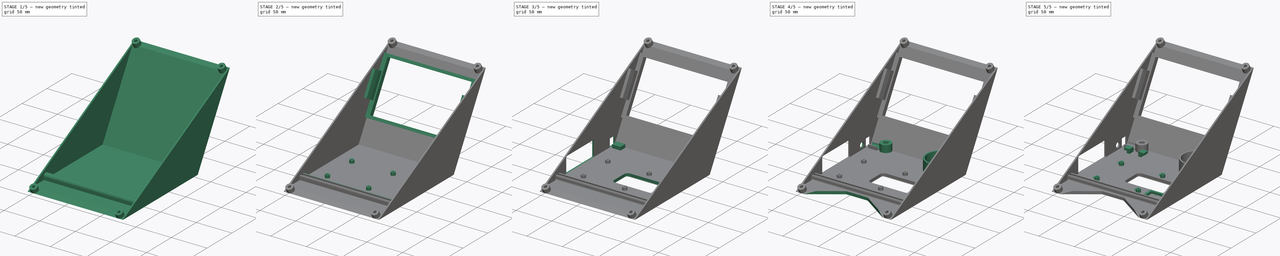
[diagram: build sequence overview — one tinted view per stage of 5, left to right]
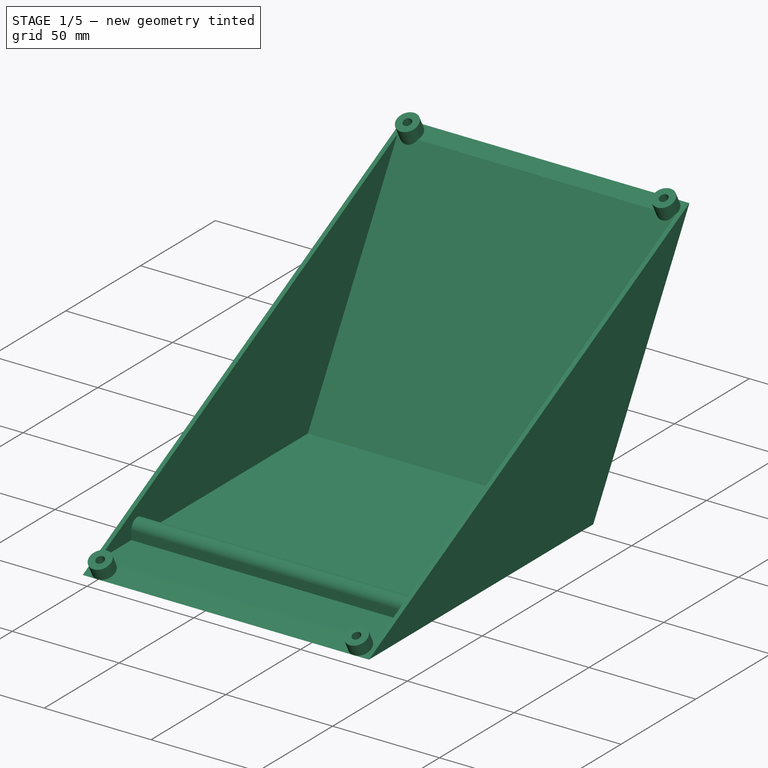
[diagram: stage 1 of 5 — iso view after this stage's code; geometry added in this stage tinted green]
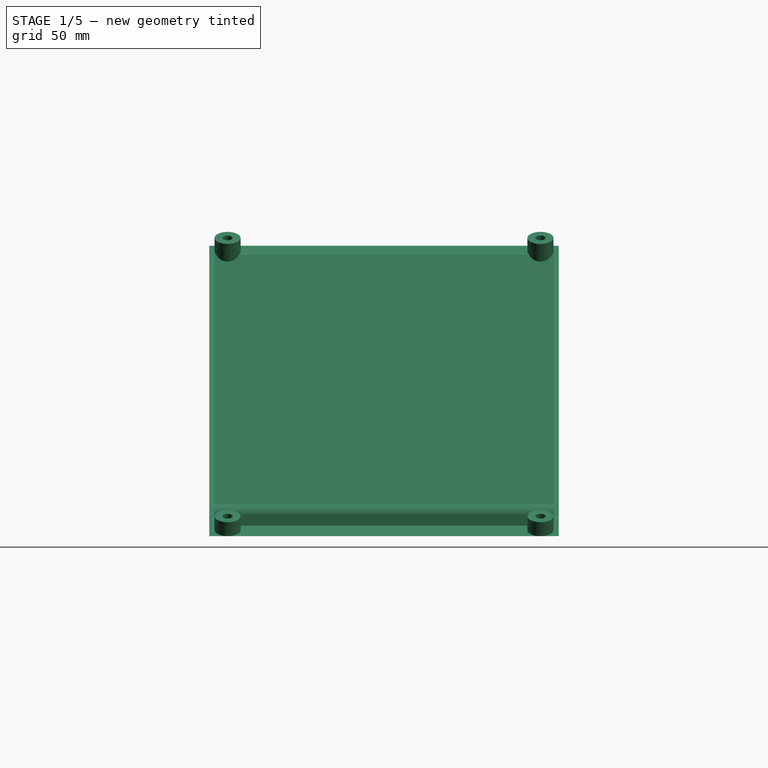
[diagram: stage 1 of 5 — front view after this stage's code; geometry added in this stage tinted green]
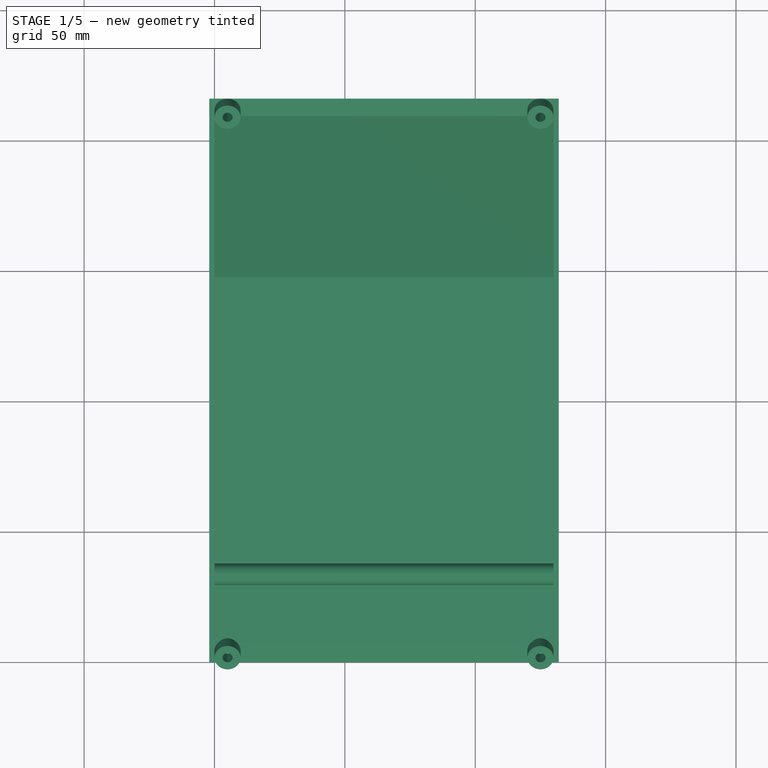
[diagram: stage 1 of 5 — top view after this stage's code; geometry added in this stage tinted green]
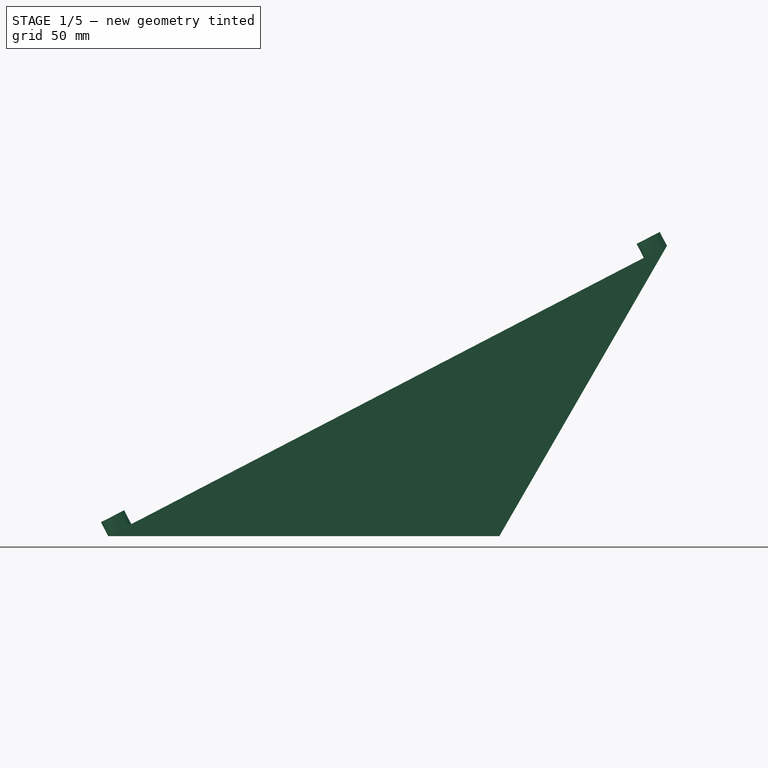
[diagram: stage 1 of 5 — right view after this stage's code; geometry added in this stage tinted green]
FCSTD DOCUMENT  (FreeCAD 0.17R8469 (Git))
Label: DAPrototypeHolder
License: All rights reserved
LicenseURL: http://en.wikipedia.org/wiki/All_rights_reserved
objects: Sketcher::SketchObject×32, PartDesign::Pad×17, PartDesign::Pocket×15, PartDesign::Fillet×5
note: 101 computed .brp shape members not serialized (recipe doc carries the construction recipe); baked Part::Feature solids carry a one-line shape summary decoded from their .brp

FEATURE [Sketcher::SketchObject] Sketch
  MapMode = 5
  Placement = pos=(0,0,0) rot=(0.57735,0.57735,0.57735;2.0944rad)
  sketch-geometry (9):
    g0: LineSegment StartX=0 StartY=0 StartZ=0 EndX=64.2889 EndY=111.352 EndZ=0
    g1: LineSegment StartX=57.6906 StartY=107.923 StartZ=0 EndX=-2.3094 EndY=4 EndZ=0
    g2: LineSegment StartX=0 StartY=0 StartZ=0 EndX=-150.007 EndY=0 EndZ=0
    g3: LineSegment StartX=-2.3094 StartY=4 StartZ=0 EndX=-142.309 EndY=4 EndZ=0
    g4: LineSegment StartX=-150.007 StartY=0 StartZ=0 EndX=-142.309 EndY=4 EndZ=0
    g5: LineSegment StartX=57.6906 StartY=107.923 StartZ=0 EndX=64.2889 EndY=111.352 EndZ=0
    g6: LineSegment [constr] StartX=-2.3094 StartY=4 StartZ=0 EndX=-2.3094 EndY=0 EndZ=0
    g7: LineSegment [constr] StartX=-2.3094 StartY=4 StartZ=0 EndX=1.1547 EndY=2 EndZ=0
    g8: LineSegment [constr] StartX=-150.007 StartY=0 StartZ=0 EndX=71.8317 EndY=115.271 EndZ=0
  constraints (27):
    c: Coincident(g0,g-1)
    c: Coincident(g2,g-1)
    c: Horizontal(g2)
    c: Horizontal(g3)
    c: Coincident(g4,g2)
    c: Coincident(g5,g1)
    c: Coincident(g5,g0)
    c: Parallel(g0,g1)
    c: Coincident(g3,g4)
    c: Coincident(g3,g1)
    c: Angle(g0,g2) = 2.0944
    c: PointOnObject(g6,g2)
    c: Vertical(g6)
    c: Distance(g6) = 4
    c: PointOnObject(g7,g0)
    c: Perpendicular(g0,g7)
    c: Distance(g3) = 140
    c: Distance(g1) = 120
    c: Coincident(g7,g1)
    c: Coincident(g6,g1)
    c: Equal(g7,g6)
    c: PointOnObject(g1,g8)
    c: PointOnObject(g3,g8)
    c: PointOnObject(g2,g8)
    c: PointOnObject(g0,g8)
    c: PointOnObject(g8,g-1)
    c: Distance(g8) = 250
FEATURE [PartDesign::Pad] Pad
  Length = 130
  Length2 = 100
  Placement = pos=(0,0,0) rot=(0.57735,0.57735,0.57735;2.0944rad)
  Profile = -> Sketch
  Type = 0
FEATURE [Sketcher::SketchObject] Sketch001
  ExternalGeometry = -> [Pad]
  MapMode = 5
  Placement = pos=(0,-31.8913,61.3749) rot=(0.230909,0.230909,-0.945179;1.62715rad)
  Support = -> [Pad]
  sketch-geometry (4):
    g0: Circle CenterX=-103.39 CenterY=125 CenterZ=0 NormalX=0 NormalY=0 NormalZ=1 Radius=5
    g1: Circle CenterX=-103.39 CenterY=5 CenterZ=0 NormalX=0 NormalY=0 NormalZ=1 Radius=5
    g2: Circle CenterX=128.11 CenterY=5 CenterZ=0 NormalX=0 NormalY=0 NormalZ=1 Radius=5
    g3: Circle CenterX=128.11 CenterY=125 CenterZ=0 NormalX=0 NormalY=0 NormalZ=1 Radius=5
  constraints (12):
    c: Radius(g0) = 5
    c: Equal(g0,g1)
    c: Equal(g0,g2)
    c: Equal(g0,g3)
    c: Tangent(g0,g-4)
    c: Tangent(g0,g-3)
    c: Tangent(g1,g-5)
    c: Tangent(g1,g-4)
    c: Tangent(g3,g-7)
    c: Tangent(g3,g-8)
    c: Tangent(g2,g-6)
    c: Tangent(g2,g-7)
FEATURE [PartDesign::Pad] Pad001
  Length = 6
  Length2 = 6
  Placement = pos=(0,0,0) rot=(0.57735,0.57735,0.57735;2.0944rad)
  Profile = -> Sketch001
  Type = 4
FEATURE [Sketcher::SketchObject] Sketch002
  ExternalGeometry = -> [Pad001]
  MapMode = 5
  Placement = pos=(130,0,0) rot=(0.57735,0.57735,0.57735;2.0944rad)
  Support = -> [Pad001]
  sketch-geometry (4):
    g0: LineSegment StartX=0 StartY=0 StartZ=0 EndX=83.7158 EndY=145 EndZ=0
    g1: LineSegment StartX=83.7158 StartY=145 StartZ=0 EndX=83.7158 EndY=-145 EndZ=0
    g2: LineSegment StartX=83.7158 StartY=-145 StartZ=0 EndX=-167.432 EndY=0 EndZ=0
    g3: LineSegment StartX=0 StartY=0 StartZ=0 EndX=-167.432 EndY=0 EndZ=0
  constraints (11):
    c: Coincident(g0,g-1)
    c: Coincident(g1,g0)
    c: Vertical(g1)
    c: Coincident(g2,g1)
    c: Coincident(g3,g-1)
    c: Coincident(g2,g3)
    c: PointOnObject(g2,g-4)
    c: PointOnObject(g0,g-3)
    c: Equal(g1,g2)
    c: Equal(g3,g0)
    c: Distance(g2) = 290
FEATURE [PartDesign::Pocket] Pocket
  Length = 5
  Placement = pos=(0,0,0) rot=(0.57735,0.57735,0.57735;2.0944rad)
  Profile = -> Sketch002
  Type = 1
FEATURE [Sketcher::SketchObject] Sketch003
  ExternalGeometry = -> [Pocket]
  MapMode = 5
  Placement = pos=(0,-34.6578,66.699) rot=(0.230909,0.230909,-0.945179;1.62715rad)
  Support = -> [Pocket]
  sketch-geometry (4):
    g0: Circle CenterX=128.11 CenterY=125 CenterZ=0 NormalX=0 NormalY=0 NormalZ=1 Radius=1.95
    g1: Circle CenterX=128.11 CenterY=5 CenterZ=0 NormalX=0 NormalY=0 NormalZ=1 Radius=1.95
    g2: Circle CenterX=-103.39 CenterY=125 CenterZ=0 NormalX=0 NormalY=0 NormalZ=1 Radius=1.95
    g3: Circle CenterX=-103.39 CenterY=5 CenterZ=0 NormalX=0 NormalY=0 NormalZ=1 Radius=1.95
  constraints (8):
    c: Radius(g0) = 1.95
    c: Equal(g0,g1)
    c: Equal(g0,g2)
    c: Equal(g0,g3)
    c: Coincident(g3,g-4)
    c: Coincident(g2,g-3)
    c: Coincident(g1,g-5)
    c: Coincident(g0,g-6)
FEATURE [PartDesign::Pocket] Pocket001
  Length = 5
  Placement = pos=(0,0,0) rot=(0.57735,0.57735,0.57735;2.0944rad)
  Profile = -> Sketch003
  Type = 1
FEATURE [Sketcher::SketchObject] Sketch004
  ExternalGeometry = -> [Pocket001]
  MapMode = 5
  Placement = pos=(0,0,0) rot=(0.57735,0.57735,-0.57735;4.18879rad)
  Support = -> [Pocket001]
  sketch-geometry (3):
    g0: LineSegment StartX=-150.007 StartY=0 StartZ=0 EndX=64.2889 EndY=-111.352 EndZ=0
    g1: LineSegment StartX=64.2889 StartY=-111.352 StartZ=0 EndX=0 EndY=0 EndZ=0
    g2: LineSegment StartX=-150.007 StartY=0 StartZ=0 EndX=0 EndY=0 EndZ=0
  constraints (6):
    c: Coincident(g0,g-6)
    c: Coincident(g0,g-3)
    c: Coincident(g1,g0)
    c: Coincident(g1,g-1)
    c: Coincident(g2,g-6)
    c: Coincident(g2,g-1)
FEATURE [PartDesign::Pad] Pad002
  Length = 2
  Length2 = 100
  Placement = pos=(0,0,0) rot=(0.57735,0.57735,0.57735;2.0944rad)
  Profile = -> Sketch004
  Type = 0
FEATURE [Sketcher::SketchObject] Sketch005
  ExternalGeometry = -> [Pad002]
  MapMode = 5
  Placement = pos=(130,0,0) rot=(0.57735,0.57735,0.57735;2.0944rad)
  Support = -> [Pad002]
  sketch-geometry (3):
    g0: LineSegment StartX=64.2889 StartY=111.352 StartZ=0 EndX=0 EndY=0 EndZ=0
    g1: LineSegment StartX=0 StartY=0 StartZ=0 EndX=-150.007 EndY=0 EndZ=0
    g2: LineSegment StartX=-150.007 StartY=0 StartZ=0 EndX=64.2889 EndY=111.352 EndZ=0
  constraints (6):
    c: Coincident(g0,g-3)
    c: Coincident(g0,g-1)
    c: Coincident(g1,g-1)
    c: Coincident(g1,g-6)
    c: Coincident(g2,g1)
    c: Coincident(g2,g0)
FEATURE [PartDesign::Pad] Pad003
  Length = 2
  Length2 = 100
  Placement = pos=(0,0,0) rot=(0.57735,0.57735,0.57735;2.0944rad)
  Profile = -> Sketch005
  Type = 0
FEATURE [Sketcher::SketchObject] Sketch006
  ExternalGeometry = -> [Pad003]
  MapMode = 5
  Placement = pos=(0,0,0) rot=(0.57735,0.57735,0.57735;2.0944rad)
  Support = -> [Pad003]
  sketch-geometry (5):
    g0: Circle CenterX=-116.309 CenterY=8.1 CenterZ=0 NormalX=0 NormalY=0 NormalZ=1 Radius=2.6
    g1: ArcOfCircle CenterX=-116.309 CenterY=8.1 CenterZ=0 NormalX=0 NormalY=0 NormalZ=1 Radius=4.1 StartAngle=4.27539e-06 EndAngle=3.14159
    g2: LineSegment StartX=-120.409 StartY=4 StartZ=0 EndX=-120.409 EndY=8.1 EndZ=0
    g3: LineSegment StartX=-112.209 StartY=4 StartZ=0 EndX=-112.209 EndY=8.10002 EndZ=0
    g4: LineSegment StartX=-120.409 StartY=4 StartZ=0 EndX=-112.209 EndY=4 EndZ=0
  constraints (15):
    c: Coincident(g1,g0)
    c: Tangent(g1,g-3)
    c: Radius(g0) = 2.6
    c: Radius(g1) = 4.1
    c: DistanceX(g-3,g0) = 26
    c: PointOnObject(g2,g-3)
    c: Vertical(g2)
    c: PointOnObject(g3,g-3)
    c: Vertical(g3)
    c: Coincident(g1,g3)
    c: Coincident(g1,g2)
    c: Distance(g2) = 4.1
    c: Tangent(g3,g1)
    c: Coincident(g4,g2)
    c: Coincident(g4,g3)
FEATURE [PartDesign::Pad] Pad004
  Length = 10
  Length2 = 100
  Placement = pos=(0,0,0) rot=(0.57735,0.57735,0.57735;2.0944rad)
  Profile = -> Sketch006
  Type = 2
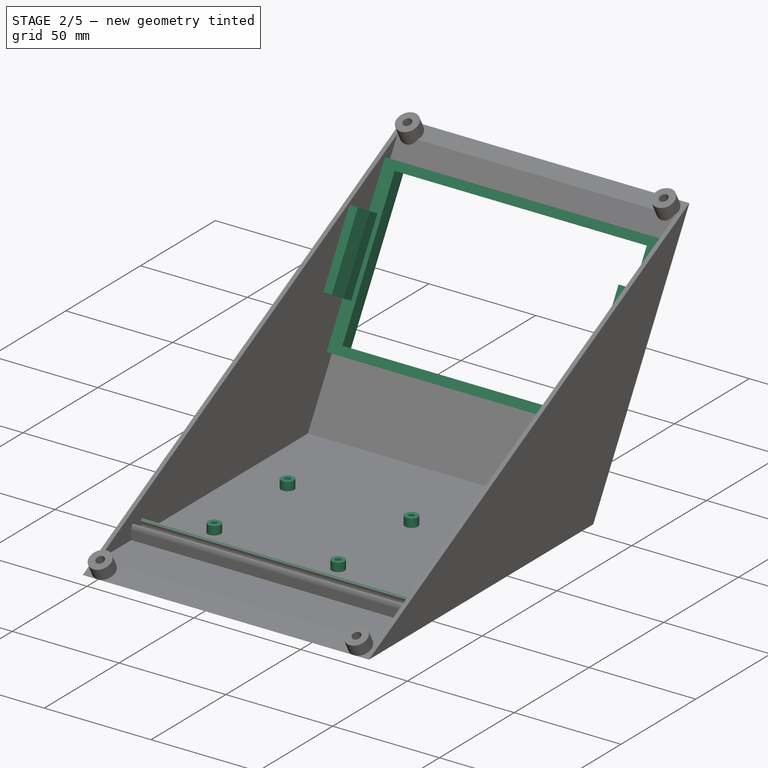
[diagram: stage 2 of 5 — iso view after this stage's code; geometry added in this stage tinted green]
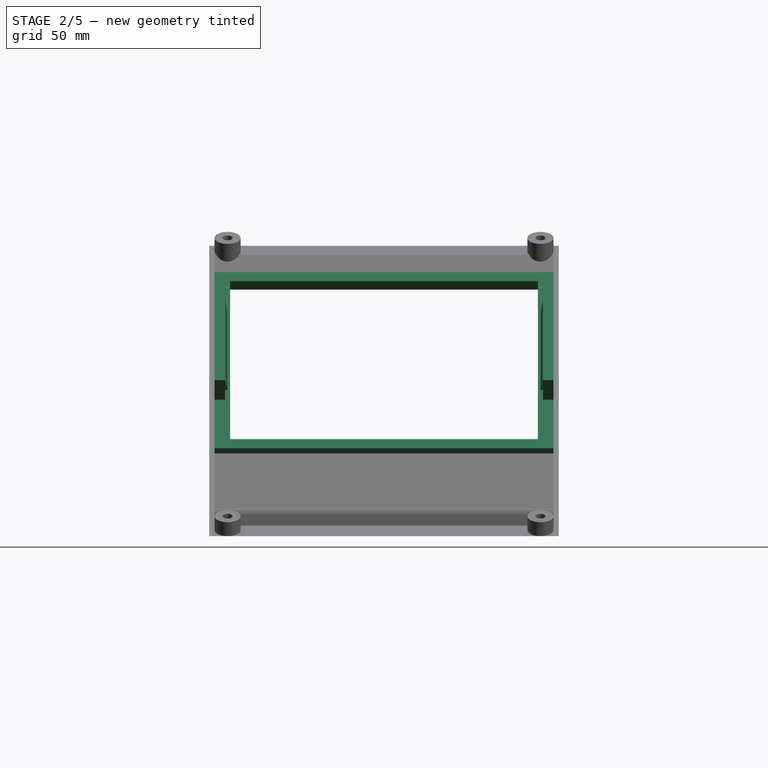
[diagram: stage 2 of 5 — front view after this stage's code; geometry added in this stage tinted green]
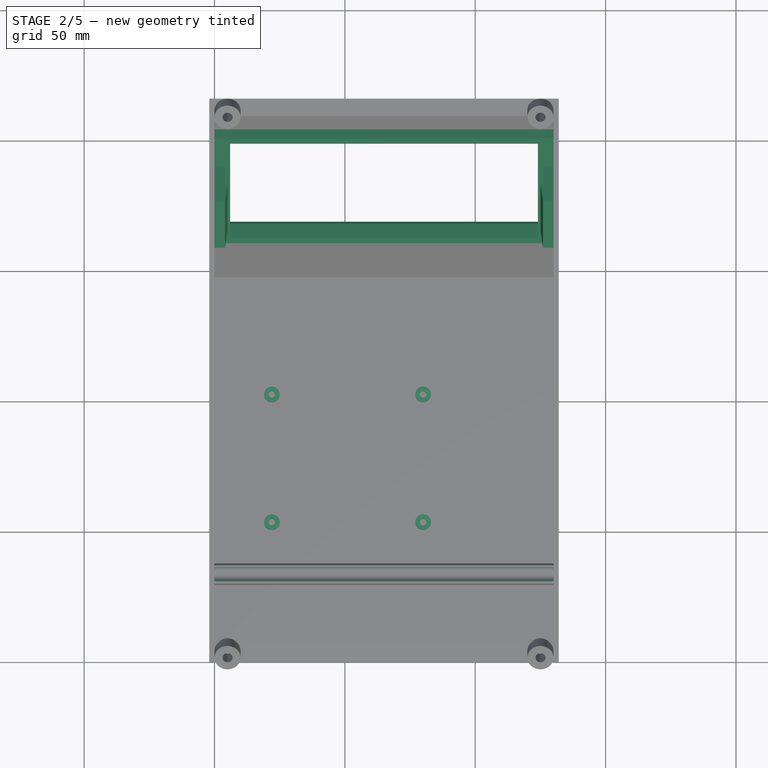
[diagram: stage 2 of 5 — top view after this stage's code; geometry added in this stage tinted green]
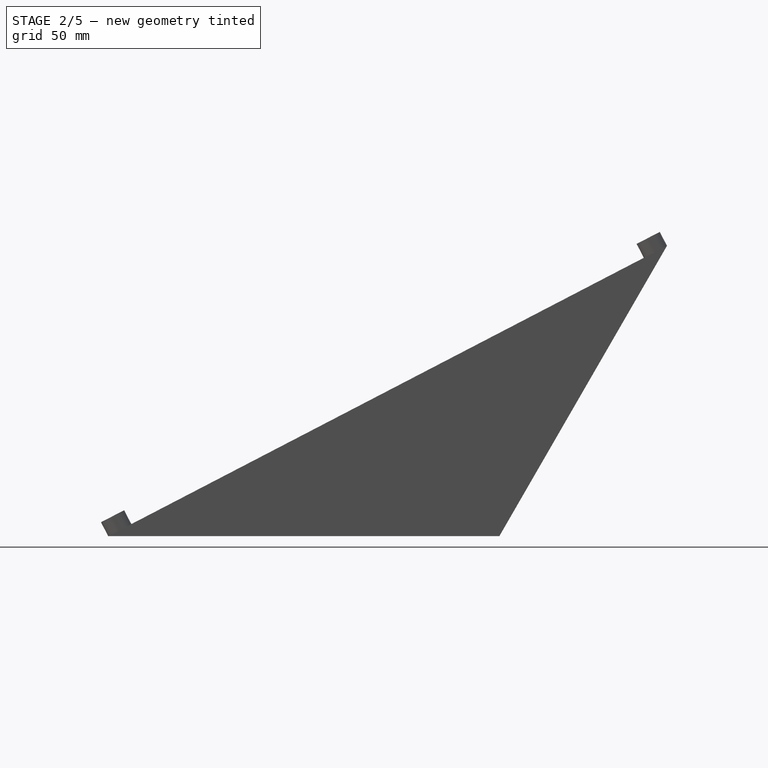
[diagram: stage 2 of 5 — right view after this stage's code; geometry added in this stage tinted green]
FEATURE [Sketcher::SketchObject] Sketch007
  ExternalGeometry = -> [Pad004]
  MapMode = 5
  Placement = pos=(0,0,0) rot=(0.57735,0.57735,0.57735;2.0944rad)
  Support = -> [Pad004]
  sketch-geometry (3):
    g0: LineSegment StartX=-116.309 StartY=8.1 StartZ=0 EndX=-108.809 EndY=14.3932 EndZ=0
    g1: LineSegment StartX=-116.309 StartY=8.1 StartZ=0 EndX=-123.809 EndY=14.3932 EndZ=0
    g2: LineSegment StartX=-123.809 StartY=14.3932 StartZ=0 EndX=-108.809 EndY=14.3932 EndZ=0
  constraints (8):
    c: Coincident(g0,g-5)
    c: Coincident(g1,g0)
    c: Coincident(g2,g1)
    c: Coincident(g2,g0)
    c: Horizontal(g2)
    c: Equal(g0,g1)
    c: Angle(g1,g-4) = 0.698132
    c: Distance(g2) = 15
FEATURE [PartDesign::Pocket] Pocket002
  Length = 130
  Placement = pos=(0,0,0) rot=(0.57735,0.57735,0.57735;2.0944rad)
  Profile = -> Sketch007
  Reversed = true
  Type = 0
FEATURE [PartDesign::Fillet] Fillet
  Base = -> Pocket002 [Edge129,Edge134,Edge133,Edge123]
  Placement = pos=(0,0,0) rot=(0.57735,0.57735,0.57735;2.0944rad)
  Radius = 0.6
FEATURE [Sketcher::SketchObject] Sketch008
  ExternalGeometry = -> [Fillet]
  MapMode = 5
  Placement = pos=(0,-3.4641,2) rot=(0.447214,0.447214,-0.774597;1.82348rad)
  Support = -> [Fillet]
  sketch-geometry (12):
    g0: LineSegment StartX=-108.309 StartY=124 StartZ=0 EndX=-38.3094 EndY=124 EndZ=0
    g1: LineSegment StartX=-38.3094 StartY=124 StartZ=0 EndX=-38.3094 EndY=6 EndZ=0
    g2: LineSegment StartX=-38.3094 StartY=6 StartZ=0 EndX=-108.309 EndY=6 EndZ=0
    g3: LineSegment StartX=-108.309 StartY=6 StartZ=0 EndX=-108.309 EndY=124 EndZ=0
    g4: LineSegment [constr] StartX=-2.3094 StartY=130 StartZ=0 EndX=-38.3094 EndY=130 EndZ=0
    g5: LineSegment [constr] StartX=-38.3094 StartY=130 StartZ=0 EndX=-38.3094 EndY=124 EndZ=0
    g6: LineSegment [constr] StartX=-38.3094 StartY=124 StartZ=0 EndX=-2.3094 EndY=124 EndZ=0
    g7: LineSegment [constr] StartX=-2.3094 StartY=124 StartZ=0 EndX=-2.3094 EndY=130 EndZ=0
    g8: LineSegment [constr] StartX=-2.3094 StartY=0 StartZ=0 EndX=-38.3094 EndY=0 EndZ=0
    g9: LineSegment [constr] StartX=-38.3094 StartY=0 StartZ=0 EndX=-38.3094 EndY=6 EndZ=0
    g10: LineSegment [constr] StartX=-38.3094 StartY=6 StartZ=0 EndX=-2.3094 EndY=6 EndZ=0
    g11: LineSegment [constr] StartX=-2.3094 StartY=6 StartZ=0 EndX=-2.3094 EndY=0 EndZ=0
  constraints (32):
    c: Coincident(g0,g1)
    c: Coincident(g1,g2)
    c: Coincident(g2,g3)
    c: Coincident(g3,g0)
    c: Horizontal(g0)
    c: Horizontal(g2)
    c: Vertical(g1)
    c: Vertical(g3)
    c: Distance(g0) = 70
    c: Distance(g3) = 118
    c: Coincident(g4,g5)
    c: Coincident(g5,g6)
    c: Coincident(g6,g7)
    c: Coincident(g7,g4)
    c: Horizontal(g4)
    c: Horizontal(g6)
    c: Vertical(g5)
    c: Vertical(g7)
    c: Coincident(g4,g-3)
    c: Coincident(g5,g0)
    c: Coincident(g8,g9)
    c: Coincident(g9,g10)
    c: Coincident(g10,g11)
    c: Coincident(g11,g8)
    c: Horizontal(g8)
    c: Horizontal(g10)
    c: Vertical(g9)
    c: Vertical(g11)
    c: Coincident(g8,g-3)
    c: Coincident(g9,g1)
    c: Equal(g9,g5)
    c: DistanceX(g10,g10) = 36
FEATURE [PartDesign::Pocket] Pocket003
  Length = 5
  Placement = pos=(0,0,0) rot=(0.57735,0.57735,0.57735;2.0944rad)
  Profile = -> Sketch008
  Type = 1
FEATURE [Sketcher::SketchObject] Sketch009
  ExternalGeometry = -> [Pocket003]
  MapMode = 5
  Placement = pos=(0,-3.4641,2) rot=(0.447214,0.447214,-0.774597;1.82348rad)
  Support = -> [Pocket003]
  sketch-geometry (10):
    g0: LineSegment StartX=-112.309 StartY=130 StartZ=0 EndX=-34.3094 EndY=130 EndZ=0
    g1: LineSegment StartX=-34.3094 StartY=130 StartZ=0 EndX=-34.3094 EndY=0 EndZ=0
    g2: LineSegment StartX=-34.3094 StartY=0 StartZ=0 EndX=-112.309 EndY=0 EndZ=0
    g3: LineSegment StartX=-112.309 StartY=0 StartZ=0 EndX=-112.309 EndY=130 EndZ=0
    g4: LineSegment StartX=-108.309 StartY=124 StartZ=0 EndX=-38.3094 EndY=124 EndZ=0
    g5: LineSegment StartX=-38.3094 StartY=124 StartZ=0 EndX=-38.3094 EndY=6 EndZ=0
    g6: LineSegment StartX=-38.3094 StartY=6 StartZ=0 EndX=-108.309 EndY=6 EndZ=0
    g7: LineSegment StartX=-108.309 StartY=6 StartZ=0 EndX=-108.309 EndY=124 EndZ=0
    g8: LineSegment [constr] StartX=-108.309 StartY=124 StartZ=0 EndX=-112.309 EndY=124 EndZ=0
    g9: LineSegment [constr] StartX=-38.3094 StartY=124 StartZ=0 EndX=-34.3094 EndY=124 EndZ=0
  constraints (28):
    c: Coincident(g0,g1)
    c: Coincident(g1,g2)
    c: Coincident(g2,g3)
    c: Coincident(g3,g0)
    c: Horizontal(g0)
    c: Horizontal(g2)
    c: Vertical(g1)
    c: Vertical(g3)
    c: PointOnObject(g0,g-3)
    c: PointOnObject(g1,g-4)
    c: Coincident(g4,g5)
    c: Coincident(g5,g6)
    c: Coincident(g6,g7)
    c: Coincident(g7,g4)
    c: Horizontal(g4)
    c: Horizontal(g6)
    c: Vertical(g5)
    c: Vertical(g7)
    c: Coincident(g4,g-6)
    c: Coincident(g5,g-5)
    c: Coincident(g8,g4)
    c: PointOnObject(g8,g3)
    c: Coincident(g9,g4)
    c: PointOnObject(g9,g1)
    c: Perpendicular(g1,g9)
    c: Perpendicular(g3,g8)
    c: Equal(g8,g9)
    c: Distance(g9) = 4
FEATURE [PartDesign::Pad] Pad005
  Length = 4
  Length2 = 100
  Placement = pos=(0,0,0) rot=(0.57735,0.57735,0.57735;2.0944rad)
  Profile = -> Sketch009
  Type = 0
FEATURE [PartDesign::Fillet] Fillet001
  Base = -> Pad005 [Edge154,Edge155,Edge152,Edge153]
  Placement = pos=(0,0,0) rot=(0.57735,0.57735,0.57735;2.0944rad)
  Radius = 2
FEATURE [Sketcher::SketchObject] Sketch010
  ExternalGeometry = -> [Fillet001]
  MapMode = 5
  Placement = pos=(0,-6.9282,4) rot=(0.447214,0.447214,-0.774597;1.82348rad)
  Support = -> [Fillet001]
  sketch-geometry (32):
    g0: LineSegment [constr] StartX=-55.8094 StartY=124 StartZ=0 EndX=-90.8094 EndY=124 EndZ=0
    g1: LineSegment [constr] StartX=-90.8094 StartY=124 StartZ=0 EndX=-90.8094 EndY=126 EndZ=0
    g2: LineSegment [constr] StartX=-90.8094 StartY=126 StartZ=0 EndX=-55.8094 EndY=126 EndZ=0
    g3: LineSegment [constr] StartX=-55.8094 StartY=126 StartZ=0 EndX=-55.8094 EndY=124 EndZ=0
    g4: LineSegment [constr] StartX=-90.8094 StartY=6 StartZ=0 EndX=-55.8094 EndY=6 EndZ=0
    g5: LineSegment [constr] StartX=-55.8094 StartY=6 StartZ=0 EndX=-55.8094 EndY=4 EndZ=0
    g6: LineSegment [constr] StartX=-55.8094 StartY=4 StartZ=0 EndX=-90.8094 EndY=4 EndZ=0
    g7: LineSegment [constr] StartX=-90.8094 StartY=4 StartZ=0 EndX=-90.8094 EndY=6 EndZ=0
    g8: LineSegment StartX=-90.8094 StartY=4 StartZ=0 EndX=-55.8094 EndY=4 EndZ=0
    g9: LineSegment StartX=-55.8094 StartY=4 StartZ=0 EndX=-55.8094 EndY=0 EndZ=0
    g10: LineSegment StartX=-55.8094 StartY=0 StartZ=0 EndX=-90.8094 EndY=0 EndZ=0
    g11: LineSegment StartX=-90.8094 StartY=0 StartZ=0 EndX=-90.8094 EndY=4 EndZ=0
    g12: LineSegment StartX=-55.8094 StartY=126 StartZ=0 EndX=-90.8094 EndY=126 EndZ=0
    g13: LineSegment StartX=-90.8094 StartY=126 StartZ=0 EndX=-90.8094 EndY=130 EndZ=0
    g14: LineSegment StartX=-90.8094 StartY=130 StartZ=0 EndX=-55.8094 EndY=130 EndZ=0
    g15: LineSegment StartX=-55.8094 StartY=130 StartZ=0 EndX=-55.8094 EndY=126 EndZ=0
    g16: LineSegment [constr] StartX=-112.309 StartY=0 StartZ=0 EndX=-90.8094 EndY=0 EndZ=0
    g17: LineSegment [constr] StartX=-90.8094 StartY=0 StartZ=0 EndX=-90.8094 EndY=6 EndZ=0
    g18: LineSegment [constr] StartX=-90.8094 StartY=6 StartZ=0 EndX=-112.309 EndY=6 EndZ=0
    g19: LineSegment [constr] StartX=-112.309 StartY=6 StartZ=0 EndX=-112.309 EndY=0 EndZ=0
    g20: LineSegment [constr] StartX=-34.3094 StartY=0 StartZ=0 EndX=-55.8094 EndY=0 EndZ=0
    g21: LineSegment [constr] StartX=-55.8094 StartY=0 StartZ=0 EndX=-55.8094 EndY=6 EndZ=0
    g22: LineSegment [constr] StartX=-55.8094 StartY=6 StartZ=0 EndX=-34.3094 EndY=6 EndZ=0
    g23: LineSegment [constr] StartX=-34.3094 StartY=6 StartZ=0 EndX=-34.3094 EndY=0 EndZ=0
    g24: LineSegment [constr] StartX=-112.309 StartY=130 StartZ=0 EndX=-90.8094 EndY=130 EndZ=0
    g25: LineSegment [constr] StartX=-90.8094 StartY=130 StartZ=0 EndX=-90.8094 EndY=124 EndZ=0
    g26: LineSegment [constr] StartX=-90.8094 StartY=124 StartZ=0 EndX=-112.309 EndY=124 EndZ=0
    g27: LineSegment [constr] StartX=-112.309 StartY=124 StartZ=0 EndX=-112.309 EndY=130 EndZ=0
    g28: LineSegment [constr] StartX=-34.3094 StartY=130 StartZ=0 EndX=-55.8094 EndY=130 EndZ=0
    g29: LineSegment [constr] StartX=-55.8094 StartY=130 StartZ=0 EndX=-55.8094 EndY=124 EndZ=0
    g30: LineSegment [constr] StartX=-55.8094 StartY=124 StartZ=0 EndX=-34.3094 EndY=124 EndZ=0
    g31: LineSegment [constr] StartX=-34.3094 StartY=124 StartZ=0 EndX=-34.3094 EndY=130 EndZ=0
  constraints (86):
    c: Coincident(g0,g1)
    c: Coincident(g1,g2)
    c: Coincident(g2,g3)
    c: Coincident(g3,g0)
    c: Horizontal(g0)
    c: Horizontal(g2)
    c: Vertical(g1)
    c: Vertical(g3)
    c: PointOnObject(g0,g-4)
    c: Coincident(g4,g5)
    c: Coincident(g5,g6)
    c: Coincident(g6,g7)
    c: Coincident(g7,g4)
    c: Horizontal(g4)
    c: Horizontal(g6)
    c: Vertical(g5)
    c: Vertical(g7)
    c: PointOnObject(g4,g-5)
    c: Coincident(g8,g9)
    c: Coincident(g9,g10)
    c: Coincident(g10,g11)
    c: Coincident(g11,g8)
    c: Horizontal(g8)
    c: Horizontal(g10)
    c: Vertical(g9)
    c: Vertical(g11)
    c: Coincident(g8,g6)
    c: PointOnObject(g9,g-6)
    c: Coincident(g12,g13)
    c: Coincident(g13,g14)
    c: Coincident(g14,g15)
    c: Coincident(g15,g12)
    c: Horizontal(g12)
    c: Horizontal(g14)
    c: Vertical(g13)
    c: Vertical(g15)
    c: Coincident(g12,g2)
    c: PointOnObject(g13,g-3)
    c: Coincident(g12,g1)
    c: Coincident(g8,g5)
    c: Distance(g5) = 2
    c: Distance(g3) = 2
    c: Distance(g2) = 35
    c: Distance(g6) = 35
    c: Coincident(g16,g17)
    c: Coincident(g17,g18)
    c: Coincident(g18,g19)
    c: Coincident(g19,g16)
    c: Horizontal(g16)
    c: Horizontal(g18)
    c: Vertical(g17)
    c: Vertical(g19)
    c: Coincident(g16,g-6)
    c: Coincident(g17,g4)
    c: Coincident(g20,g21)
    c: Coincident(g21,g22)
    c: Coincident(g22,g23)
    c: Coincident(g23,g20)
    c: Horizontal(g20)
    c: Horizontal(g22)
    c: Vertical(g21)
    c: Vertical(g23)
    c: Coincident(g20,g-6)
    c: Coincident(g21,g4)
    c: Coincident(g24,g25)
    c: Coincident(g25,g26)
    c: Coincident(g26,g27)
    c: Coincident(g27,g24)
    c: Horizontal(g24)
    c: Horizontal(g26)
    c: Vertical(g25)
    c: Vertical(g27)
    c: Coincident(g24,g-3)
    c: Coincident(g25,g0)
    c: Coincident(g28,g29)
    c: Coincident(g29,g30)
    c: Coincident(g30,g31)
    c: Coincident(g31,g28)
    c: Horizontal(g28)
    c: Horizontal(g30)
    c: Vertical(g29)
    c: Vertical(g31)
    c: Coincident(g28,g-3)
    c: Coincident(g29,g0)
    c: Equal(g26,g30)
    c: Equal(g22,g18)
FEATURE [PartDesign::Pad] Pad006
  Length = 15
  Length2 = 100
  Placement = pos=(0,0,0) rot=(0.57735,0.57735,0.57735;2.0944rad)
  Profile = -> Sketch010
  Type = 0
FEATURE [Sketcher::SketchObject] Sketch011
  ExternalGeometry = -> [Pad006]
  MapMode = 5
  Placement = pos=(0,45.4047,78.6432) rot=(-0.250563,-0.250563,-0.935113;1.63783rad)
  Support = -> [Pad006]
  sketch-geometry (6):
    g0: LineSegment StartX=23 StartY=4 StartZ=0 EndX=15.5 EndY=4 EndZ=0
    g1: LineSegment StartX=15.5 StartY=4 StartZ=0 EndX=15.5 EndY=5 EndZ=0
    g2: LineSegment StartX=15.5 StartY=5 StartZ=0 EndX=23 EndY=4 EndZ=0
    g3: LineSegment StartX=23 StartY=126 StartZ=0 EndX=15.5 EndY=126 EndZ=0
    g4: LineSegment StartX=15.5 StartY=126 StartZ=0 EndX=15.5 EndY=125 EndZ=0
    g5: LineSegment StartX=15.5 StartY=125 StartZ=0 EndX=23 EndY=126 EndZ=0
  constraints (16):
    c: Coincident(g0,g-4)
    c: PointOnObject(g0,g-4)
    c: Coincident(g1,g0)
    c: Vertical(g1)
    c: Coincident(g2,g1)
    c: Coincident(g2,g0)
    c: Coincident(g3,g-3)
    c: PointOnObject(g3,g-3)
    c: Coincident(g4,g3)
    c: Vertical(g4)
    c: Coincident(g5,g4)
    c: Coincident(g5,g3)
    c: Equal(g4,g1)
    c: Equal(g0,g3)
    c: Distance(g1) = 1
    c: Distance(g0) = 7.5
FEATURE [PartDesign::Pad] Pad007
  Length = 35
  Length2 = 100
  Placement = pos=(0,0,0) rot=(0.57735,0.57735,0.57735;2.0944rad)
  Profile = -> Sketch011
  Reversed = true
  Type = 0
FEATURE [Sketcher::SketchObject] Sketch012
  ExternalGeometry = -> [Pad007]
  MapMode = 5
  Placement = pos=(0,0,4) rot=(0,0,-1;1.5708rad)
  Support = -> [Pad007]
  sketch-geometry (16):
    g0: LineSegment [constr] StartX=2.3094 StartY=0 StartZ=0 EndX=47.3094 EndY=0 EndZ=0
    g1: LineSegment [constr] StartX=47.3094 StartY=0 StartZ=0 EndX=47.3094 EndY=22 EndZ=0
    g2: LineSegment [constr] StartX=47.3094 StartY=22 StartZ=0 EndX=2.3094 EndY=22 EndZ=0
    g3: LineSegment [constr] StartX=2.3094 StartY=22 StartZ=0 EndX=2.3094 EndY=0 EndZ=0
    g4: LineSegment [constr] StartX=47.3094 StartY=22 StartZ=0 EndX=96.3094 EndY=22 EndZ=0
    g5: LineSegment [constr] StartX=96.3094 StartY=22 StartZ=0 EndX=96.3094 EndY=80 EndZ=0
    g6: LineSegment [constr] StartX=96.3094 StartY=80 StartZ=0 EndX=47.3094 EndY=80 EndZ=0
    g7: LineSegment [constr] StartX=47.3094 StartY=80 StartZ=0 EndX=47.3094 EndY=22 EndZ=0
    g8: Circle CenterX=96.3094 CenterY=22 CenterZ=0 NormalX=0 NormalY=0 NormalZ=1 Radius=3
    g9: Circle CenterX=96.3094 CenterY=80 CenterZ=0 NormalX=0 NormalY=0 NormalZ=1 Radius=3
    g10: Circle CenterX=47.3094 CenterY=80 CenterZ=0 NormalX=0 NormalY=0 NormalZ=1 Radius=3
    g11: Circle CenterX=47.3094 CenterY=22 CenterZ=0 NormalX=0 NormalY=0 NormalZ=1 Radius=3
    g12: Circle CenterX=47.3094 CenterY=22 CenterZ=0 NormalX=0 NormalY=0 NormalZ=1 Radius=1.25
    g13: Circle CenterX=47.3094 CenterY=80 CenterZ=0 NormalX=0 NormalY=0 NormalZ=1 Radius=1.25
    g14: Circle CenterX=96.3094 CenterY=80 CenterZ=0 NormalX=0 NormalY=0 NormalZ=1 Radius=1.25
    g15: Circle CenterX=96.3094 CenterY=22 CenterZ=0 NormalX=0 NormalY=0 NormalZ=1 Radius=1.25
  constraints (38):
    c: Coincident(g0,g1)
    c: Coincident(g1,g2)
    c: Coincident(g2,g3)
    c: Coincident(g3,g0)
    c: Horizontal(g0)
    c: Horizontal(g2)
    c: Vertical(g1)
    c: Vertical(g3)
    c: Coincident(g0,g-5)
    c: Coincident(g4,g5)
    c: Coincident(g5,g6)
    c: Coincident(g6,g7)
    c: Coincident(g7,g4)
    c: Horizontal(g4)
    c: Horizontal(g6)
    c: Vertical(g5)
    c: Vertical(g7)
    c: Coincident(g4,g1)
    c: Distance(g1) = 22
    c: Distance(g2) = 45
    c: Distance(g4) = 49
    c: Distance(g5) = 58
    c: Radius(g15) = 1.25
    c: Equal(g15,g14)
    c: Equal(g15,g13)
    c: Equal(g15,g12)
    c: Radius(g8) = 3
    c: Equal(g8,g9)
    c: Equal(g8,g10)
    c: Equal(g8,g11)
    c: Coincident(g12,g11)
    c: Coincident(g13,g10)
    c: Coincident(g14,g9)
    c: Coincident(g15,g8)
    c: Coincident(g11,g1)
    c: Coincident(g10,g6)
    c: Coincident(g5,g9)
    c: Coincident(g4,g8)
FEATURE [PartDesign::Pad] Pad008
  Length = 4
  Length2 = 100
  Placement = pos=(0,0,0) rot=(0.57735,0.57735,0.57735;2.0944rad)
  Profile = -> Sketch012
  Type = 0
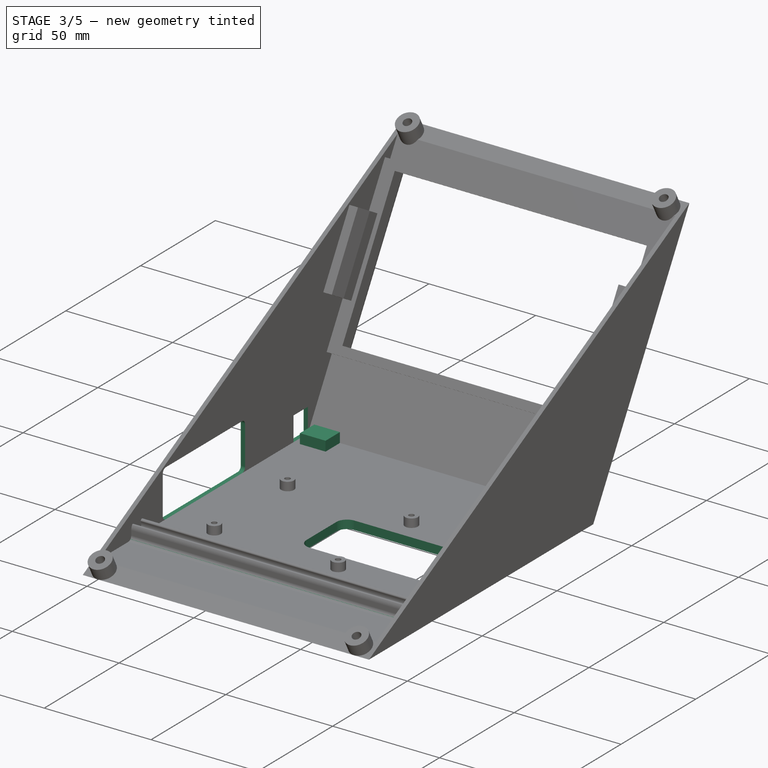
[diagram: stage 3 of 5 — iso view after this stage's code; geometry added in this stage tinted green]
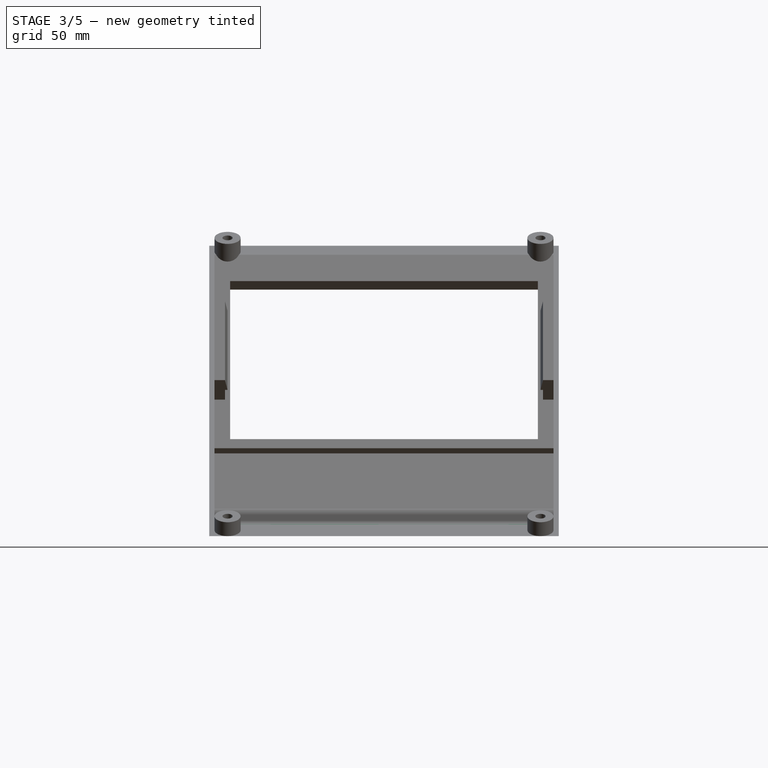
[diagram: stage 3 of 5 — front view after this stage's code; geometry added in this stage tinted green]
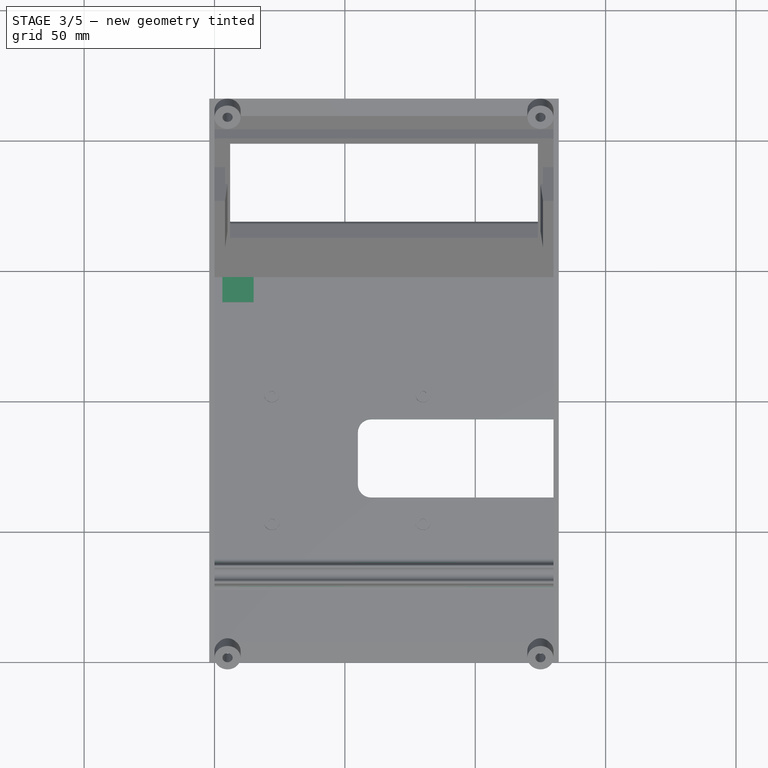
[diagram: stage 3 of 5 — top view after this stage's code; geometry added in this stage tinted green]
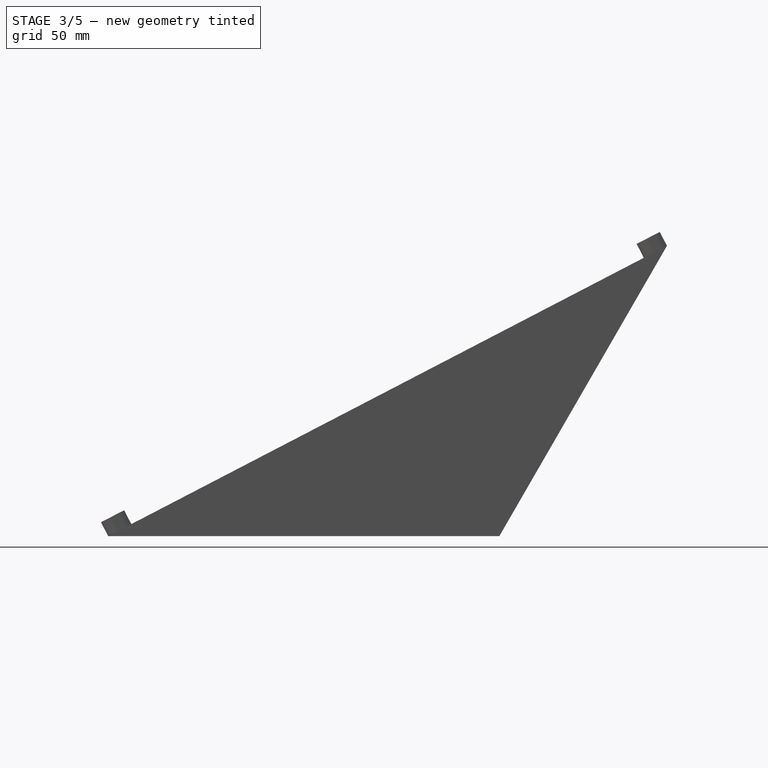
[diagram: stage 3 of 5 — right view after this stage's code; geometry added in this stage tinted green]
FEATURE [Sketcher::SketchObject] Sketch013
  ExternalGeometry = -> [Pad008]
  MapMode = 5
  Placement = pos=(0,0,4) rot=(0,0,-1;1.5708rad)
  Support = -> [Pad008]
  sketch-geometry (12):
    g0: LineSegment StartX=56.8094 StartY=130 StartZ=0 EndX=86.8094 EndY=130 EndZ=0
    g1: LineSegment StartX=86.8094 StartY=130 StartZ=0 EndX=86.8094 EndY=55 EndZ=0
    g2: LineSegment StartX=86.8094 StartY=55 StartZ=0 EndX=56.8094 EndY=55 EndZ=0
    g3: LineSegment StartX=56.8094 StartY=55 StartZ=0 EndX=56.8094 EndY=130 EndZ=0
    g4: LineSegment [constr] StartX=47.3094 StartY=80 StartZ=0 EndX=56.8094 EndY=80 EndZ=0
    g5: LineSegment [constr] StartX=56.8094 StartY=80 StartZ=0 EndX=56.8094 EndY=55 EndZ=0
    g6: LineSegment [constr] StartX=56.8094 StartY=55 StartZ=0 EndX=47.3094 EndY=55 EndZ=0
    g7: LineSegment [constr] StartX=47.3094 StartY=55 StartZ=0 EndX=47.3094 EndY=80 EndZ=0
    g8: LineSegment [constr] StartX=96.3094 StartY=80 StartZ=0 EndX=86.8094 EndY=80 EndZ=0
    g9: LineSegment [constr] StartX=86.8094 StartY=80 StartZ=0 EndX=86.8094 EndY=55 EndZ=0
    g10: LineSegment [constr] StartX=86.8094 StartY=55 StartZ=0 EndX=96.3094 EndY=55 EndZ=0
    g11: LineSegment [constr] StartX=96.3094 StartY=55 StartZ=0 EndX=96.3094 EndY=80 EndZ=0
  constraints (33):
    c: Coincident(g0,g1)
    c: Coincident(g1,g2)
    c: Coincident(g2,g3)
    c: Coincident(g3,g0)
    c: Horizontal(g0)
    c: Horizontal(g2)
    c: Vertical(g1)
    c: Vertical(g3)
    c: Coincident(g4,g5)
    c: Coincident(g5,g6)
    c: Coincident(g6,g7)
    c: Coincident(g7,g4)
    c: Horizontal(g4)
    c: Horizontal(g6)
    c: Vertical(g5)
    c: Vertical(g7)
    c: Coincident(g4,g-3)
    c: Coincident(g8,g9)
    c: Coincident(g9,g10)
    c: Coincident(g10,g11)
    c: Coincident(g11,g8)
    c: Horizontal(g8)
    c: Horizontal(g10)
    c: Vertical(g9)
    c: Vertical(g11)
    c: Coincident(g8,g-4)
    c: Coincident(g2,g5)
    c: Coincident(g9,g1)
    c: Equal(g10,g6)
    c: Equal(g5,g9)
    c: Distance(g11) = 25
    c: Distance(g2) = 30
    c: PointOnObject(g0,g-5)
FEATURE [PartDesign::Pocket] Pocket004
  Length = 5
  Placement = pos=(0,0,0) rot=(0.57735,0.57735,0.57735;2.0944rad)
  Profile = -> Sketch013
  Type = 2
FEATURE [PartDesign::Fillet] Fillet002
  Base = -> Pocket004 [Edge84,Edge81]
  Placement = pos=(0,0,0) rot=(0.57735,0.57735,0.57735;2.0944rad)
  Radius = 5
FEATURE [Sketcher::SketchObject] Sketch014
  ExternalGeometry = -> [Fillet002]
  MapMode = 5
  Placement = pos=(0,0,0) rot=(0.57735,0.57735,0.57735;2.0944rad)
  Support = -> [Fillet002]
  sketch-geometry (12):
    g0: LineSegment [constr] StartX=-61.8094 StartY=4 StartZ=0 EndX=-44.3094 EndY=4 EndZ=0
    g1: LineSegment [constr] StartX=-44.3094 StartY=4 StartZ=0 EndX=-44.3094 EndY=26 EndZ=0
    g2: LineSegment [constr] StartX=-44.3094 StartY=26 StartZ=0 EndX=-61.8094 EndY=26 EndZ=0
    g3: LineSegment [constr] StartX=-61.8094 StartY=26 StartZ=0 EndX=-61.8094 EndY=4 EndZ=0
    g4: LineSegment [constr] StartX=-81.8094 StartY=4 StartZ=0 EndX=-99.3094 EndY=4 EndZ=0
    g5: LineSegment [constr] StartX=-99.3094 StartY=4 StartZ=0 EndX=-99.3094 EndY=26 EndZ=0
    g6: LineSegment [constr] StartX=-99.3094 StartY=26 StartZ=0 EndX=-81.8094 EndY=26 EndZ=0
    g7: LineSegment [constr] StartX=-81.8094 StartY=26 StartZ=0 EndX=-81.8094 EndY=4 EndZ=0
    g8: LineSegment StartX=-99.3094 StartY=26 StartZ=0 EndX=-44.3094 EndY=26 EndZ=0
    g9: LineSegment StartX=-44.3094 StartY=26 StartZ=0 EndX=-44.3094 EndY=4 EndZ=0
    g10: LineSegment StartX=-44.3094 StartY=4 StartZ=0 EndX=-99.3094 EndY=4 EndZ=0
    g11: LineSegment StartX=-99.3094 StartY=4 StartZ=0 EndX=-99.3094 EndY=26 EndZ=0
  constraints (32):
    c: Coincident(g0,g1)
    c: Coincident(g1,g2)
    c: Coincident(g2,g3)
    c: Coincident(g3,g0)
    c: Horizontal(g0)
    c: Horizontal(g2)
    c: Vertical(g1)
    c: Vertical(g3)
    c: Coincident(g0,g-3)
    c: Coincident(g4,g5)
    c: Coincident(g5,g6)
    c: Coincident(g6,g7)
    c: Coincident(g7,g4)
    c: Horizontal(g4)
    c: Horizontal(g6)
    c: Vertical(g5)
    c: Vertical(g7)
    c: Coincident(g4,g-3)
    c: Equal(g1,g5)
    c: Equal(g6,g2)
    c: Distance(g1) = 22
    c: Coincident(g8,g9)
    c: Coincident(g9,g10)
    c: Coincident(g10,g11)
    c: Coincident(g11,g8)
    c: Horizontal(g8)
    c: Horizontal(g10)
    c: Vertical(g9)
    c: Vertical(g11)
    c: Coincident(g8,g5)
    c: Coincident(g9,g0)
    c: Distance(g8) = 55
FEATURE [PartDesign::Pocket] Pocket005
  Length = 5
  Placement = pos=(0,0,0) rot=(0.57735,0.57735,0.57735;2.0944rad)
  Profile = -> Sketch014
  Type = 2
FEATURE [PartDesign::Fillet] Fillet003
  Base = -> Pocket005 [Edge190,Edge160,Edge159,Edge189]
  Placement = pos=(0,0,0) rot=(0.57735,0.57735,0.57735;2.0944rad)
  Radius = 2
FEATURE [PartDesign::Fillet] Fillet004
  Base = -> Fillet003 [Edge7,Edge293]
  Placement = pos=(0,0,0) rot=(0.57735,0.57735,0.57735;2.0944rad)
  Radius = 2
FEATURE [Sketcher::SketchObject] Sketch015
  ExternalGeometry = -> [Fillet004]
  MapMode = 5
  Placement = pos=(0,0,0) rot=(0.57735,0.57735,0.57735;2.0944rad)
  Support = -> [Fillet004]
  sketch-geometry (4):
    g0: LineSegment StartX=-2.3094 StartY=4 StartZ=0 EndX=-11.9094 EndY=4 EndZ=0
    g1: LineSegment StartX=-11.9094 StartY=4 StartZ=0 EndX=-11.9094 EndY=15.3 EndZ=0
    g2: LineSegment StartX=-11.9094 StartY=15.3 StartZ=0 EndX=-2.3094 EndY=15.3 EndZ=0
    g3: LineSegment StartX=-2.3094 StartY=15.3 StartZ=0 EndX=-2.3094 EndY=4 EndZ=0
  constraints (11):
    c: Coincident(g0,g1)
    c: Coincident(g1,g2)
    c: Coincident(g2,g3)
    c: Coincident(g3,g0)
    c: Horizontal(g0)
    c: Horizontal(g2)
    c: Vertical(g1)
    c: Vertical(g3)
    c: Coincident(g0,g-3)
    c: Distance(g3) = 11.3
    c: Distance(g2) = 9.6
FEATURE [PartDesign::Pocket] Pocket006
  Length = 5
  Placement = pos=(0,0,0) rot=(0.57735,0.57735,0.57735;2.0944rad)
  Profile = -> Sketch015
  Type = 2
FEATURE [Sketcher::SketchObject] Sketch016
  ExternalGeometry = -> [Pocket006]
  MapMode = 5
  Placement = pos=(0,0,4) rot=(0,0,-1;1.5708rad)
  Support = -> [Pocket006]
  sketch-geometry (8):
    g0: LineSegment StartX=11.9094 StartY=3 StartZ=0 EndX=2.3094 EndY=3 EndZ=0
    g1: LineSegment StartX=2.3094 StartY=3 StartZ=0 EndX=2.3094 EndY=15 EndZ=0
    g2: LineSegment StartX=2.3094 StartY=15 StartZ=0 EndX=11.9094 EndY=15 EndZ=0
    g3: LineSegment StartX=11.9094 StartY=15 StartZ=0 EndX=11.9094 EndY=3 EndZ=0
    g4: LineSegment [constr] StartX=2.3094 StartY=3 StartZ=0 EndX=11.9094 EndY=3 EndZ=0
    g5: LineSegment [constr] StartX=11.9094 StartY=3 StartZ=0 EndX=11.9094 EndY=0 EndZ=0
    g6: LineSegment [constr] StartX=11.9094 StartY=0 StartZ=0 EndX=2.3094 EndY=0 EndZ=0
    g7: LineSegment [constr] StartX=2.3094 StartY=0 StartZ=0 EndX=2.3094 EndY=3 EndZ=0
  constraints (22):
    c: Coincident(g0,g1)
    c: Coincident(g1,g2)
    c: Coincident(g2,g3)
    c: Coincident(g3,g0)
    c: Horizontal(g0)
    c: Horizontal(g2)
    c: Vertical(g1)
    c: Vertical(g3)
    c: Distance(g3) = 12
    c: Coincident(g4,g5)
    c: Coincident(g5,g6)
    c: Coincident(g6,g7)
    c: Coincident(g7,g4)
    c: Horizontal(g4)
    c: Horizontal(g6)
    c: Vertical(g5)
    c: Vertical(g7)
    c: Coincident(g4,g0)
    c: Coincident(g4,g0)
    c: Coincident(g5,g-3)
    c: Coincident(g6,g-3)
    c: Distance(g5) = 3
FEATURE [PartDesign::Pad] Pad009
  Length = 4.6
  Length2 = 100
  Placement = pos=(0,0,0) rot=(0.57735,0.57735,0.57735;2.0944rad)
  Profile = -> Sketch016
  Type = 0
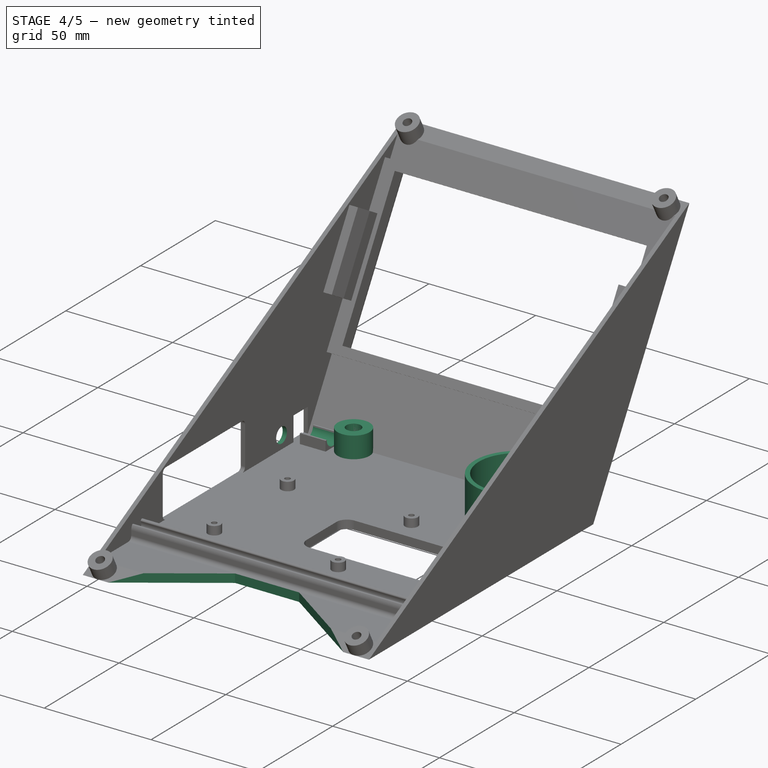
[diagram: stage 4 of 5 — iso view after this stage's code; geometry added in this stage tinted green]
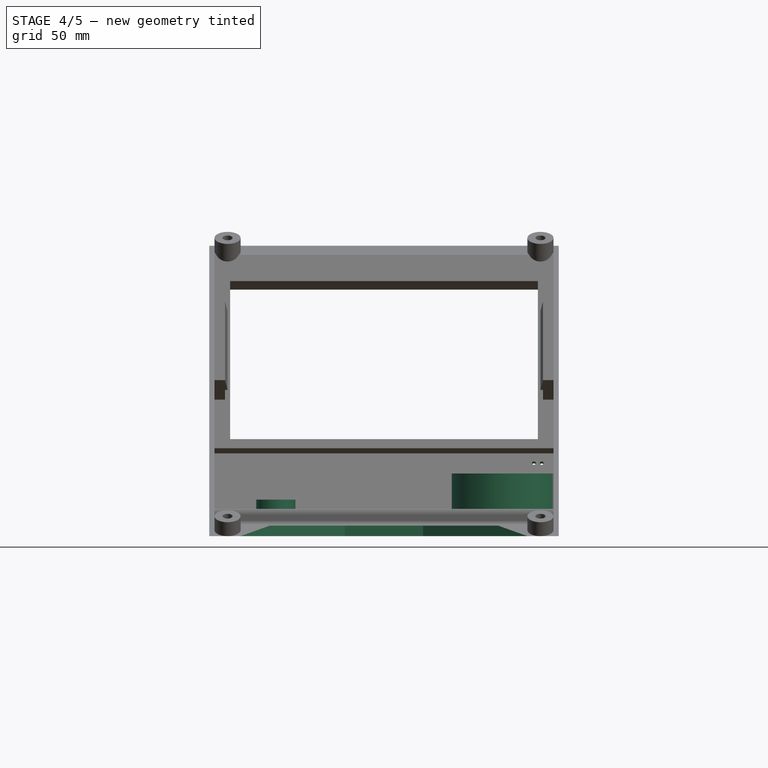
[diagram: stage 4 of 5 — front view after this stage's code; geometry added in this stage tinted green]
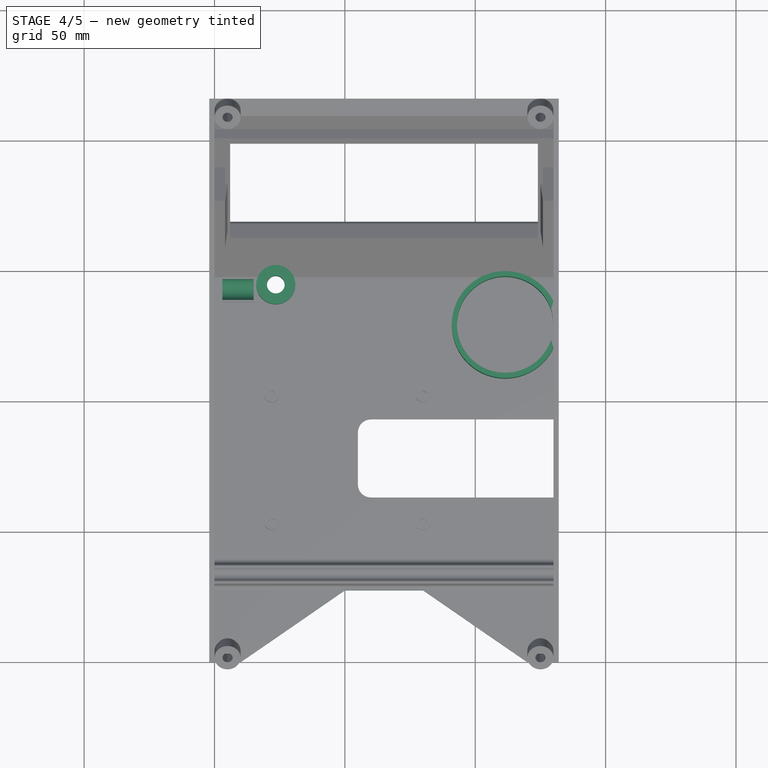
[diagram: stage 4 of 5 — top view after this stage's code; geometry added in this stage tinted green]
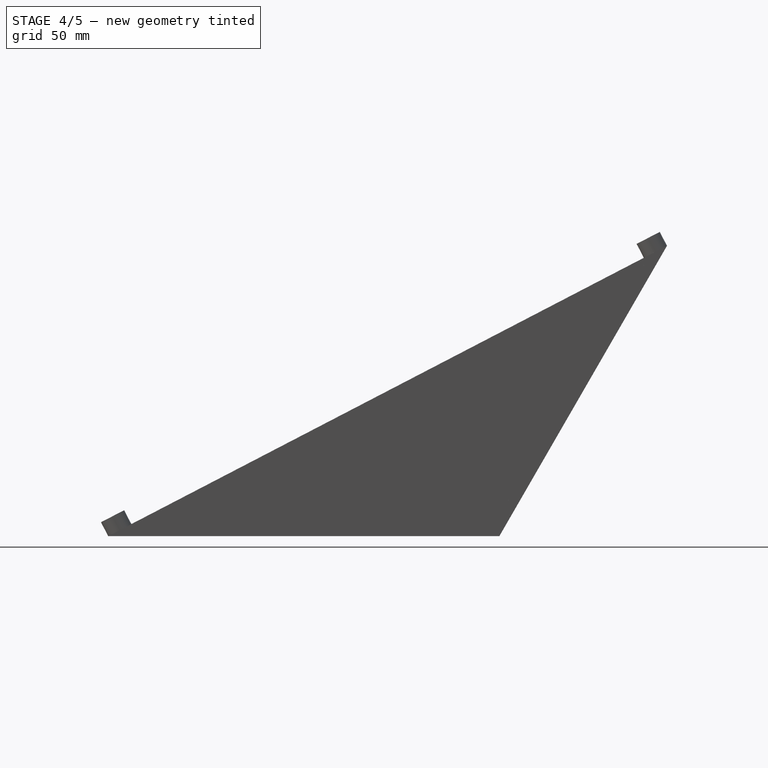
[diagram: stage 4 of 5 — right view after this stage's code; geometry added in this stage tinted green]
FEATURE [Sketcher::SketchObject] Sketch017
  ExternalGeometry = -> [Pad009]
  MapMode = 5
  Placement = pos=(3,0,0) rot=(0.57735,0.57735,-0.57735;4.18879rad)
  Support = -> [Pad009]
  sketch-geometry (4):
    g0: ArcOfCircle CenterX=-7.1094 CenterY=-8.6 CenterZ=0 NormalX=0 NormalY=0 NormalZ=1 Radius=4 StartAngle=0 EndAngle=3.14159
    g1: LineSegment [constr] StartX=-3.1094 StartY=-8.6 StartZ=0 EndX=-2.3094 EndY=-8.6 EndZ=0
    g2: LineSegment [constr] StartX=-11.1094 StartY=-8.6 StartZ=0 EndX=-11.9094 EndY=-8.6 EndZ=0
    g3: LineSegment StartX=-11.1094 StartY=-8.6 StartZ=0 EndX=-3.1094 EndY=-8.6 EndZ=0
  constraints (11):
    c: PointOnObject(g0,g-3)
    c: PointOnObject(g0,g-3)
    c: PointOnObject(g0,g-3)
    c: Coincident(g1,g0)
    c: Coincident(g1,g-3)
    c: Coincident(g2,g0)
    c: Coincident(g2,g-3)
    c: Equal(g1,g2)
    c: Radius(g0) = 4
    c: Coincident(g3,g0)
    c: Coincident(g3,g0)
FEATURE [PartDesign::Pocket] Pocket007
  Length = 5
  Placement = pos=(0,0,0) rot=(0.57735,0.57735,0.57735;2.0944rad)
  Profile = -> Sketch017
  Type = 2
FEATURE [Sketcher::SketchObject] Sketch018
  ExternalGeometry = -> [Pocket007]
  MapMode = 5
  Placement = pos=(0,0,0) rot=(0.57735,0.57735,0.57735;2.0944rad)
  Support = -> [Pocket007]
  sketch-geometry (5):
    g0: Circle CenterX=-19.9094 CenterY=10 CenterZ=0 NormalX=0 NormalY=0 NormalZ=1 Radius=3.6
    g1: LineSegment [constr] StartX=-11.9094 StartY=4 StartZ=0 EndX=-19.9094 EndY=4 EndZ=0
    g2: LineSegment [constr] StartX=-19.9094 StartY=4 StartZ=0 EndX=-19.9094 EndY=10 EndZ=0
    g3: LineSegment [constr] StartX=-19.9094 StartY=10 StartZ=0 EndX=-11.9094 EndY=10 EndZ=0
    g4: LineSegment [constr] StartX=-11.9094 StartY=10 StartZ=0 EndX=-11.9094 EndY=4 EndZ=0
  constraints (13):
    c: Radius(g0) = 3.6
    c: Coincident(g1,g2)
    c: Coincident(g2,g3)
    c: Coincident(g3,g4)
    c: Coincident(g4,g1)
    c: Horizontal(g1)
    c: Horizontal(g3)
    c: Vertical(g2)
    c: Vertical(g4)
    c: Coincident(g1,g-3)
    c: Coincident(g2,g0)
    c: Distance(g3) = 8
    c: Distance(g2) = 6
FEATURE [PartDesign::Pocket] Pocket008
  Length = 5
  Placement = pos=(0,0,0) rot=(0.57735,0.57735,0.57735;2.0944rad)
  Profile = -> Sketch018
  Type = 2
FEATURE [Sketcher::SketchObject] Sketch019
  ExternalGeometry = -> [Pocket008]
  MapMode = 5
  Placement = pos=(0,0,0) rot=(0.654654,0.654654,0.377964;3.86433rad)
  Support = -> [Pocket008]
  sketch-geometry (5):
    g0: Circle CenterX=30 CenterY=124 CenterZ=0 NormalX=0 NormalY=0 NormalZ=1 Radius=3.4
    g1: LineSegment [constr] StartX=0 StartY=130 StartZ=0 EndX=30 EndY=130 EndZ=0
    g2: LineSegment [constr] StartX=30 StartY=130 StartZ=0 EndX=30 EndY=124 EndZ=0
    g3: LineSegment [constr] StartX=30 StartY=124 StartZ=0 EndX=0 EndY=124 EndZ=0
    g4: LineSegment [constr] StartX=0 StartY=124 StartZ=0 EndX=0 EndY=130 EndZ=0
  constraints (13):
    c: Radius(g0) = 3.4
    c: Coincident(g1,g2)
    c: Coincident(g3,g4)
    c: Coincident(g4,g1)
    c: Horizontal(g1)
    c: Horizontal(g3)
    c: Vertical(g2)
    c: Vertical(g4)
    c: Coincident(g1,g-3)
    c: Distance(g3) = 30
    c: Distance(g2) = 6
    c: Coincident(g0,g2)
    c: Coincident(g0,g3)
FEATURE [PartDesign::Pocket] Pocket009
  Length = 2.5
  Placement = pos=(0,0,0) rot=(0.57735,0.57735,0.57735;2.0944rad)
  Profile = -> Sketch019
  Type = 0
FEATURE [Sketcher::SketchObject] Sketch020
  ExternalGeometry = -> [Pocket009]
  MapMode = 5
  Placement = pos=(0,-2.16506,1.25) rot=(0.654654,0.654654,0.377964;3.86433rad)
  Support = -> [Pocket009]
  sketch-geometry (4):
    g0: LineSegment [constr] StartX=30 StartY=124 StartZ=0 EndX=30 EndY=122.5 EndZ=0
    g1: LineSegment [constr] StartX=30 StartY=124 StartZ=0 EndX=30 EndY=125.5 EndZ=0
    g2: Circle CenterX=30 CenterY=125.5 CenterZ=0 NormalX=0 NormalY=0 NormalZ=1 Radius=0.75
    g3: Circle CenterX=30 CenterY=122.5 CenterZ=0 NormalX=0 NormalY=0 NormalZ=1 Radius=0.75
  constraints (10):
    c: Coincident(g0,g-3)
    c: Coincident(g1,g0)
    c: Vertical(g0)
    c: Vertical(g1)
    c: Equal(g1,g0)
    c: Distance(g0) = 1.5
    c: Coincident(g2,g1)
    c: Coincident(g3,g0)
    c: Radius(g3) = 0.75
    c: Equal(g3,g2)
FEATURE [PartDesign::Pocket] Pocket010
  Length = 5
  Placement = pos=(0,0,0) rot=(0.57735,0.57735,0.57735;2.0944rad)
  Profile = -> Sketch020
  Type = 2
FEATURE [Sketcher::SketchObject] Sketch021
  ExternalGeometry = -> [Pocket010]
  MapMode = 5
  Placement = pos=(0,0,4) rot=(0,0,-1;1.5708rad)
  Support = -> [Pocket010]
  sketch-geometry (2):
    g0: Circle CenterX=20.8094 CenterY=111.5 CenterZ=0 NormalX=0 NormalY=0 NormalZ=1 Radius=20.5
    g1: Circle CenterX=20.8094 CenterY=111.5 CenterZ=0 NormalX=0 NormalY=0 NormalZ=1 Radius=18.5
  constraints (5):
    c: Coincident(g1,g0)
    c: Radius(g1) = 18.5
    c: Radius(g0) = 20.5
    c: Tangent(g1,g-4)
    c: Tangent(g1,g-3)
FEATURE [PartDesign::Pad] Pad010
  Length = 20
  Length2 = 100
  Placement = pos=(0,0,0) rot=(0.57735,0.57735,0.57735;2.0944rad)
  Profile = -> Sketch021
  Type = 0
FEATURE [Sketcher::SketchObject] Sketch022
  ExternalGeometry = -> [Pad010]
  MapMode = 5
  Placement = pos=(0,0,4) rot=(0,0,-1;1.5708rad)
  Support = -> [Pad010]
  sketch-geometry (5):
    g0: LineSegment [constr] StartX=2.3094 StartY=15 StartZ=0 EndX=5.3094 EndY=15 EndZ=0
    g1: LineSegment [constr] StartX=5.3094 StartY=15 StartZ=0 EndX=5.3094 EndY=23.5 EndZ=0
    g2: LineSegment [constr] StartX=5.3094 StartY=23.5 StartZ=0 EndX=2.3094 EndY=23.5 EndZ=0
    g3: LineSegment [constr] StartX=2.3094 StartY=23.5 StartZ=0 EndX=2.3094 EndY=15 EndZ=0
    g4: Circle CenterX=5.3094 CenterY=23.5 CenterZ=0 NormalX=0 NormalY=0 NormalZ=1 Radius=7.5
  constraints (13):
    c: Coincident(g0,g1)
    c: Coincident(g1,g2)
    c: Coincident(g2,g3)
    c: Coincident(g3,g0)
    c: Horizontal(g0)
    c: Horizontal(g2)
    c: Vertical(g1)
    c: Vertical(g3)
    c: Coincident(g0,g-3)
    c: Coincident(g4,g1)
    c: Radius(g4) = 7.5
    c: Distance(g2) = 3
    c: Distance(g1) = 8.5
FEATURE [PartDesign::Pad] Pad011
  Length = 10
  Length2 = 100
  Placement = pos=(0,0,0) rot=(0.57735,0.57735,0.57735;2.0944rad)
  Profile = -> Sketch022
  Type = 0
FEATURE [Sketcher::SketchObject] Sketch023
  ExternalGeometry = -> [Pad011]
  MapMode = 5
  Placement = pos=(0,0,14) rot=(0,0,-1;1.5708rad)
  Support = -> [Pad011]
  sketch-geometry (1):
    g0: Circle CenterX=5.3094 CenterY=23.5 CenterZ=0 NormalX=0 NormalY=0 NormalZ=1 Radius=3.4
  constraints (2):
    c: Coincident(g0,g-3)
    c: Radius(g0) = 3.4
FEATURE [PartDesign::Pocket] Pocket011
  Length = 5
  Placement = pos=(0,0,0) rot=(0.57735,0.57735,0.57735;2.0944rad)
  Profile = -> Sketch023
  Type = 2
FEATURE [Sketcher::SketchObject] Sketch024
  ExternalGeometry = -> [Pocket011]
  MapMode = 5
  Placement = pos=(0,0,4) rot=(0,0,-1;1.5708rad)
  Support = -> [Pocket011]
  sketch-geometry (6):
    g0: LineSegment StartX=122.409 StartY=50 StartZ=0 EndX=150.007 EndY=10 EndZ=0
    g1: LineSegment StartX=122.409 StartY=80 StartZ=0 EndX=150.007 EndY=120 EndZ=0
    g2: LineSegment StartX=150.007 StartY=10 StartZ=0 EndX=150.007 EndY=120 EndZ=0
    g3: LineSegment StartX=122.409 StartY=50 StartZ=0 EndX=122.409 EndY=80 EndZ=0
    g4: LineSegment [constr] StartX=122.409 StartY=50 StartZ=0 EndX=122.409 EndY=0 EndZ=0
    g5: LineSegment [constr] StartX=122.409 StartY=80 StartZ=0 EndX=122.409 EndY=130 EndZ=0
  constraints (16):
    c: PointOnObject(g0,g-3)
    c: PointOnObject(g1,g-3)
    c: PointOnObject(g0,g-4)
    c: PointOnObject(g1,g-4)
    c: Coincident(g2,g0)
    c: Coincident(g2,g1)
    c: Coincident(g3,g0)
    c: Coincident(g3,g1)
    c: Equal(g0,g1)
    c: Coincident(g4,g0)
    c: Coincident(g4,g-3)
    c: Coincident(g5,g1)
    c: Coincident(g5,g-3)
    c: Equal(g4,g5)
    c: Distance(g2) = 110
    c: Distance(g3) = 30
FEATURE [PartDesign::Pocket] Pocket012
  Length = 5
  Placement = pos=(0,0,0) rot=(0.57735,0.57735,0.57735;2.0944rad)
  Profile = -> Sketch024
  Type = 2
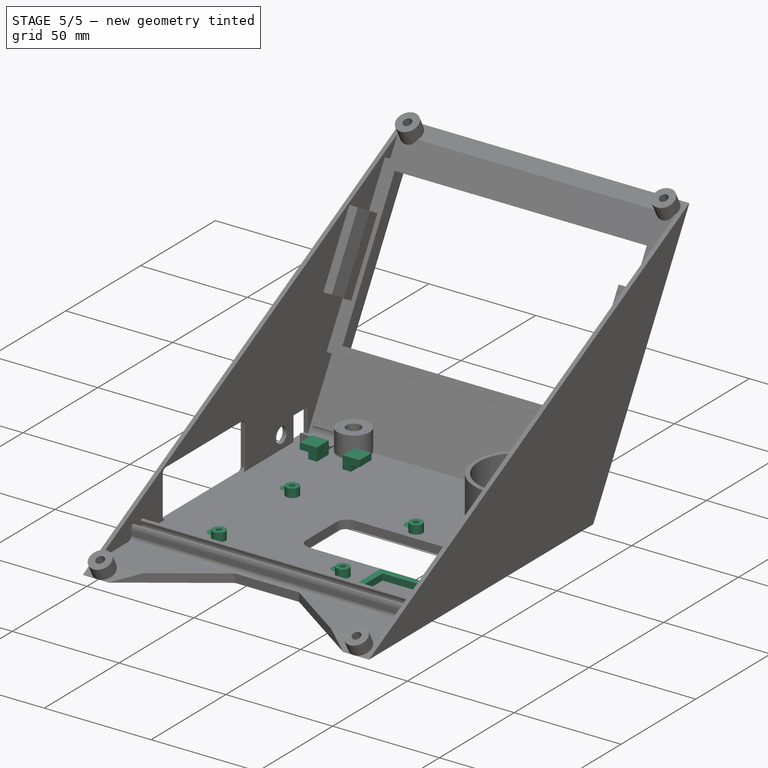
[diagram: stage 5 of 5 — iso view after this stage's code; geometry added in this stage tinted green]
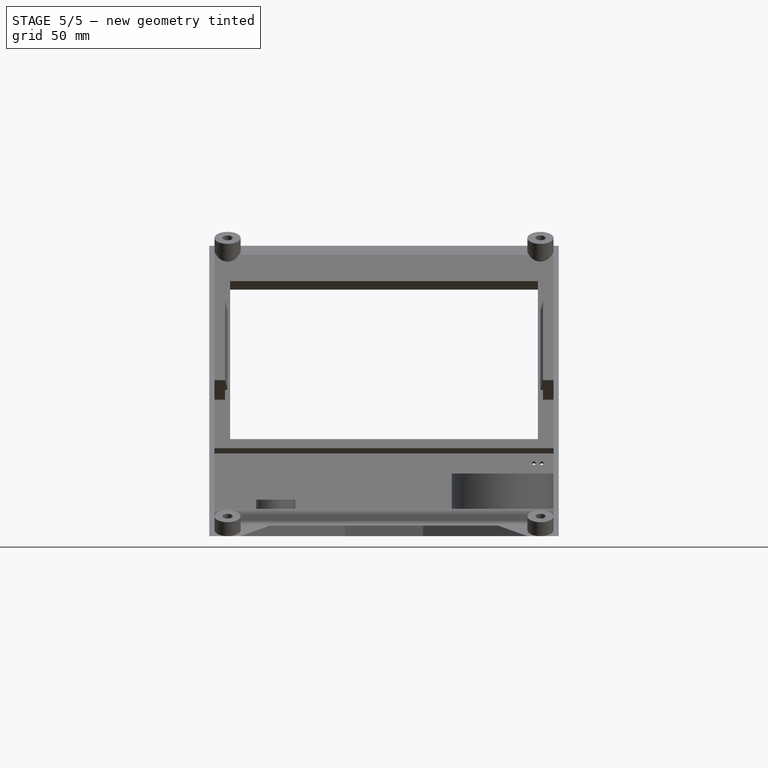
[diagram: stage 5 of 5 — front view after this stage's code; geometry added in this stage tinted green]
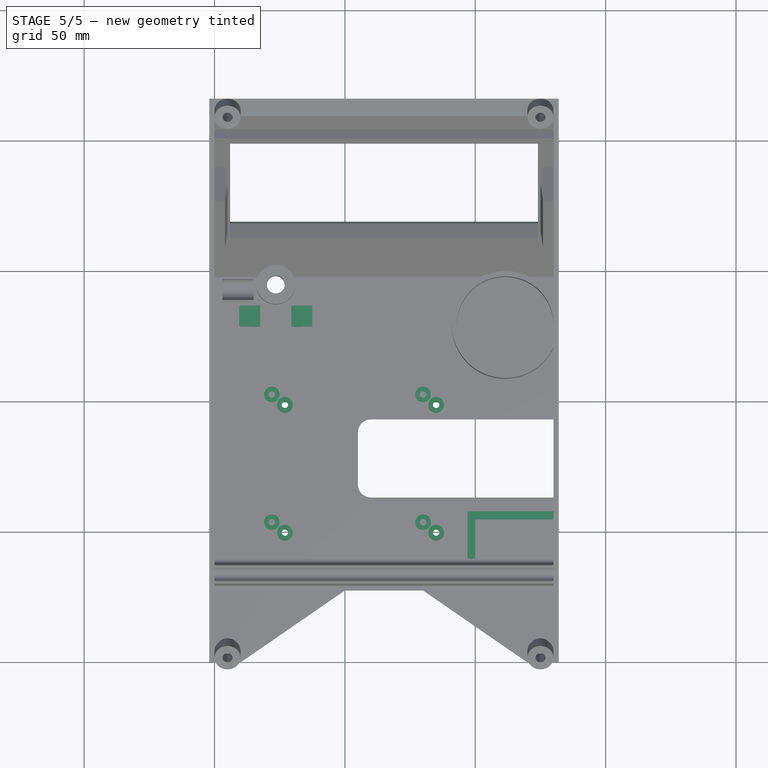
[diagram: stage 5 of 5 — top view after this stage's code; geometry added in this stage tinted green]
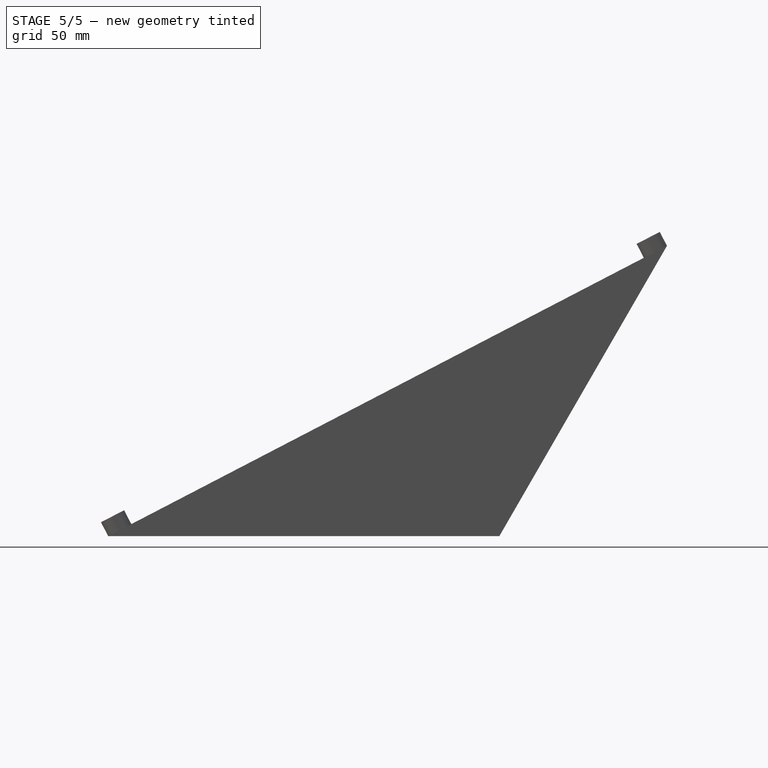
[diagram: stage 5 of 5 — right view after this stage's code; geometry added in this stage tinted green]
FEATURE [Sketcher::SketchObject] Sketch025
  ExternalGeometry = -> [Pocket012]
  MapMode = 5
  Placement = pos=(0,0,4) rot=(0,0,-1;1.5708rad)
  Support = -> [Pocket012]
  sketch-geometry (16):
    g0: LineSegment [constr] StartX=5.3094 StartY=23.5 StartZ=0 EndX=21.3094 EndY=23.5 EndZ=0
    g1: LineSegment [constr] StartX=21.3094 StartY=23.5 StartZ=0 EndX=21.3094 EndY=17.5 EndZ=0
    g2: LineSegment [constr] StartX=21.3094 StartY=17.5 StartZ=0 EndX=5.3094 EndY=17.5 EndZ=0
    g3: LineSegment [constr] StartX=5.3094 StartY=17.5 StartZ=0 EndX=5.3094 EndY=23.5 EndZ=0
    g4: LineSegment [constr] StartX=5.3094 StartY=23.5 StartZ=0 EndX=21.3094 EndY=23.5 EndZ=0
    g5: LineSegment [constr] StartX=21.3094 StartY=23.5 StartZ=0 EndX=21.3094 EndY=29.5 EndZ=0
    g6: LineSegment [constr] StartX=21.3094 StartY=29.5 StartZ=0 EndX=5.3094 EndY=29.5 EndZ=0
    g7: LineSegment [constr] StartX=5.3094 StartY=29.5 StartZ=0 EndX=5.3094 EndY=23.5 EndZ=0
    g8: LineSegment StartX=21.3094 StartY=29.5 StartZ=0 EndX=13.3094 EndY=29.5 EndZ=0
    g9: LineSegment StartX=13.3094 StartY=29.5 StartZ=0 EndX=13.3094 EndY=33.5 EndZ=0
    g10: LineSegment StartX=13.3094 StartY=33.5 StartZ=0 EndX=21.3094 EndY=33.5 EndZ=0
    g11: LineSegment StartX=21.3094 StartY=33.5 StartZ=0 EndX=21.3094 EndY=29.5 EndZ=0
    g12: LineSegment StartX=21.3094 StartY=17.5 StartZ=0 EndX=13.3094 EndY=17.5 EndZ=0
    g13: LineSegment StartX=13.3094 StartY=17.5 StartZ=0 EndX=13.3094 EndY=13.5 EndZ=0
    g14: LineSegment StartX=13.3094 StartY=13.5 StartZ=0 EndX=21.3094 EndY=13.5 EndZ=0
    g15: LineSegment StartX=21.3094 StartY=13.5 StartZ=0 EndX=21.3094 EndY=17.5 EndZ=0
  constraints (44):
    c: Coincident(g0,g1)
    c: Coincident(g1,g2)
    c: Coincident(g2,g3)
    c: Coincident(g3,g0)
    c: Horizontal(g0)
    c: Horizontal(g2)
    c: Vertical(g1)
    c: Vertical(g3)
    c: Coincident(g0,g-3)
    c: Coincident(g4,g5)
    c: Coincident(g5,g6)
    c: Coincident(g6,g7)
    c: Coincident(g7,g4)
    c: Horizontal(g4)
    c: Horizontal(g6)
    c: Vertical(g5)
    c: Vertical(g7)
    c: Coincident(g4,g0)
    c: Coincident(g4,g0)
    c: Equal(g7,g3)
    c: Coincident(g8,g9)
    c: Coincident(g9,g10)
    c: Coincident(g10,g11)
    c: Coincident(g11,g8)
    c: Horizontal(g8)
    c: Horizontal(g10)
    c: Vertical(g9)
    c: Vertical(g11)
    c: Coincident(g8,g5)
    c: Coincident(g12,g13)
    c: Coincident(g13,g14)
    c: Coincident(g14,g15)
    c: Coincident(g15,g12)
    c: Horizontal(g12)
    c: Horizontal(g14)
    c: Vertical(g13)
    c: Vertical(g15)
    c: Coincident(g12,g1)
    c: Equal(g14,g10)
    c: Equal(g13,g9)
    c: Distance(g15) = 4
    c: Distance(g10) = 8
    c: Distance(g5) = 6
    c: Distance(g6) = 16
FEATURE [PartDesign::Pad] Pad012
  Length = 6
  Length2 = 100
  Placement = pos=(0,0,0) rot=(0.57735,0.57735,0.57735;2.0944rad)
  Profile = -> Sketch025
  Type = 0
FEATURE [Sketcher::SketchObject] Sketch026
  ExternalGeometry = -> [Pad012]
  MapMode = 5
  Placement = pos=(33.5,0,0) rot=(0.57735,0.57735,0.57735;2.0944rad)
  Support = -> [Pad012]
  sketch-geometry (4):
    g0: LineSegment StartX=-13.3094 StartY=10 StartZ=0 EndX=-21.3094 EndY=10 EndZ=0
    g1: LineSegment StartX=-21.3094 StartY=10 StartZ=0 EndX=-21.3094 EndY=7 EndZ=0
    g2: LineSegment StartX=-21.3094 StartY=7 StartZ=0 EndX=-13.3094 EndY=7 EndZ=0
    g3: LineSegment StartX=-13.3094 StartY=7 StartZ=0 EndX=-13.3094 EndY=10 EndZ=0
  constraints (11):
    c: Coincident(g0,g1)
    c: Coincident(g1,g2)
    c: Coincident(g2,g3)
    c: Coincident(g3,g0)
    c: Horizontal(g0)
    c: Horizontal(g2)
    c: Vertical(g1)
    c: Vertical(g3)
    c: Coincident(g0,g-3)
    c: Coincident(g0,g-3)
    c: Distance(g3) = 3
FEATURE [PartDesign::Pad] Pad013
  Length = 4
  Length2 = 100
  Placement = pos=(0,0,0) rot=(0.57735,0.57735,0.57735;2.0944rad)
  Profile = -> Sketch026
  Type = 0
FEATURE [Sketcher::SketchObject] Sketch027
  ExternalGeometry = -> [Pad013]
  MapMode = 5
  Placement = pos=(13.5,0,0) rot=(0.57735,0.57735,-0.57735;4.18879rad)
  Support = -> [Pad013]
  sketch-geometry (4):
    g0: LineSegment StartX=-13.3094 StartY=-10 StartZ=0 EndX=-21.3094 EndY=-10 EndZ=0
    g1: LineSegment StartX=-21.3094 StartY=-10 StartZ=0 EndX=-21.3094 EndY=-7 EndZ=0
    g2: LineSegment StartX=-21.3094 StartY=-7 StartZ=0 EndX=-13.3094 EndY=-7 EndZ=0
    g3: LineSegment StartX=-13.3094 StartY=-7 StartZ=0 EndX=-13.3094 EndY=-10 EndZ=0
  constraints (11):
    c: Coincident(g0,g1)
    c: Coincident(g1,g2)
    c: Coincident(g2,g3)
    c: Coincident(g3,g0)
    c: Horizontal(g0)
    c: Horizontal(g2)
    c: Vertical(g1)
    c: Vertical(g3)
    c: Coincident(g0,g-3)
    c: Coincident(g0,g-3)
    c: Distance(g1) = 3
FEATURE [PartDesign::Pad] Pad014
  Length = 4
  Length2 = 100
  Placement = pos=(0,0,0) rot=(0.57735,0.57735,0.57735;2.0944rad)
  Profile = -> Sketch027
  Type = 0
FEATURE [Sketcher::SketchObject] Sketch028
  ExternalGeometry = -> [Pad014]
  MapMode = 5
  Placement = pos=(0,0,4) rot=(0,0,-1;1.5708rad)
  Support = -> [Pad014]
  sketch-geometry (6):
    g0: LineSegment StartX=92.2094 StartY=130 StartZ=0 EndX=92.2094 EndY=97 EndZ=0
    g1: LineSegment StartX=92.2094 StartY=97 StartZ=0 EndX=110.209 EndY=97 EndZ=0
    g2: LineSegment StartX=110.209 StartY=97 StartZ=0 EndX=110.209 EndY=100 EndZ=0
    g3: LineSegment StartX=110.209 StartY=100 StartZ=0 EndX=95.2094 EndY=100 EndZ=0
    g4: LineSegment StartX=95.2094 StartY=100 StartZ=0 EndX=95.2094 EndY=130 EndZ=0
    g5: LineSegment StartX=95.2094 StartY=130 StartZ=0 EndX=92.2094 EndY=130 EndZ=0
  constraints (18):
    c: PointOnObject(g0,g-4)
    c: Vertical(g0)
    c: Coincident(g0,g1)
    c: PointOnObject(g1,g-3)
    c: Horizontal(g1)
    c: Coincident(g1,g2)
    c: PointOnObject(g2,g-3)
    c: Coincident(g2,g3)
    c: Coincident(g3,g4)
    c: PointOnObject(g4,g-4)
    c: Vertical(g4)
    c: Coincident(g4,g5)
    c: Coincident(g5,g0)
    c: Horizontal(g3)
    c: Distance(g3) = 15
    c: Distance(g4) = 30
    c: Distance(g5) = 3
    c: Distance(g2) = 3
FEATURE [PartDesign::Pad] Pad015
  Length = 3
  Length2 = 100
  Placement = pos=(0,0,0) rot=(0.57735,0.57735,0.57735;2.0944rad)
  Profile = -> Sketch028
  Type = 0
FEATURE [Sketcher::SketchObject] Sketch029
  ExternalGeometry = -> [Pad015]
  MapMode = 5
  Placement = pos=(0,0,4) rot=(0,0,-1;1.5708rad)
  Support = -> [Pad015]
  sketch-geometry (4):
    g0: LineSegment StartX=44.3094 StartY=83 StartZ=0 EndX=99.3094 EndY=83 EndZ=0
    g1: LineSegment StartX=99.3094 StartY=83 StartZ=0 EndX=99.3094 EndY=19 EndZ=0
    g2: LineSegment StartX=99.3094 StartY=19 StartZ=0 EndX=44.3094 EndY=19 EndZ=0
    g3: LineSegment StartX=44.3094 StartY=19 StartZ=0 EndX=44.3094 EndY=83 EndZ=0
  constraints (12):
    c: Coincident(g0,g1)
    c: Coincident(g1,g2)
    c: Coincident(g2,g3)
    c: Coincident(g3,g0)
    c: Horizontal(g0)
    c: Horizontal(g2)
    c: Vertical(g1)
    c: Vertical(g3)
    c: Tangent(g0,g-6)
    c: Tangent(g2,g-5)
    c: Tangent(g1,g-6)
    c: Tangent(g3,g-3)
FEATURE [PartDesign::Pocket] Pocket013
  Length = 5
  Placement = pos=(0,0,0) rot=(0.57735,0.57735,0.57735;2.0944rad)
  Profile = -> Sketch029
  Reversed = true
  Type = 0
FEATURE [Sketcher::SketchObject] Sketch030
  ExternalGeometry = -> [Pocket013]
  MapMode = 5
  Placement = pos=(0,0,4) rot=(0,0,-1;1.5708rad)
  Support = -> [Pocket013]
  sketch-geometry (20):
    g0: LineSegment [constr] StartX=47.3094 StartY=22 StartZ=0 EndX=51.3094 EndY=22 EndZ=0
    g1: LineSegment [constr] StartX=51.3094 StartY=22 StartZ=0 EndX=51.3094 EndY=27 EndZ=0
    g2: LineSegment [constr] StartX=51.3094 StartY=27 StartZ=0 EndX=47.3094 EndY=27 EndZ=0
    g3: LineSegment [constr] StartX=47.3094 StartY=27 StartZ=0 EndX=47.3094 EndY=22 EndZ=0
    g4: LineSegment [constr] StartX=47.3094 StartY=80 StartZ=0 EndX=51.3094 EndY=80 EndZ=0
    g5: LineSegment [constr] StartX=51.3094 StartY=80 StartZ=0 EndX=51.3094 EndY=85 EndZ=0
    g6: LineSegment [constr] StartX=51.3094 StartY=85 StartZ=0 EndX=47.3094 EndY=85 EndZ=0
    g7: LineSegment [constr] StartX=47.3094 StartY=85 StartZ=0 EndX=47.3094 EndY=80 EndZ=0
    g8: LineSegment [constr] StartX=96.3094 StartY=80 StartZ=0 EndX=100.309 EndY=80 EndZ=0
    g9: LineSegment [constr] StartX=100.309 StartY=80 StartZ=0 EndX=100.309 EndY=85 EndZ=0
    g10: LineSegment [constr] StartX=100.309 StartY=85 StartZ=0 EndX=96.3094 EndY=85 EndZ=0
    g11: LineSegment [constr] StartX=96.3094 StartY=85 StartZ=0 EndX=96.3094 EndY=80 EndZ=0
    g12: LineSegment [constr] StartX=96.3094 StartY=22 StartZ=0 EndX=100.309 EndY=22 EndZ=0
    g13: LineSegment [constr] StartX=100.309 StartY=22 StartZ=0 EndX=100.309 EndY=27 EndZ=0
    g14: LineSegment [constr] StartX=100.309 StartY=27 StartZ=0 EndX=96.3094 EndY=27 EndZ=0
    g15: LineSegment [constr] StartX=96.3094 StartY=27 StartZ=0 EndX=96.3094 EndY=22 EndZ=0
    g16: Circle CenterX=51.3094 CenterY=85 CenterZ=0 NormalX=0 NormalY=0 NormalZ=1 Radius=3
    g17: Circle CenterX=100.309 CenterY=85 CenterZ=0 NormalX=0 NormalY=0 NormalZ=1 Radius=3
    g18: Circle CenterX=100.309 CenterY=27 CenterZ=0 NormalX=0 NormalY=0 NormalZ=1 Radius=3
    g19: Circle CenterX=51.3094 CenterY=27 CenterZ=0 NormalX=0 NormalY=0 NormalZ=1 Radius=3
  constraints (52):
    c: Coincident(g0,g1)
    c: Coincident(g1,g2)
    c: Coincident(g2,g3)
    c: Coincident(g3,g0)
    c: Horizontal(g0)
    c: Horizontal(g2)
    c: Vertical(g1)
    c: Vertical(g3)
    c: Coincident(g0,g-4)
    c: Coincident(g4,g5)
    c: Coincident(g5,g6)
    c: Coincident(g6,g7)
    c: Coincident(g7,g4)
    c: Horizontal(g4)
    c: Horizontal(g6)
    c: Vertical(g5)
    c: Vertical(g7)
    c: Coincident(g4,g-7)
    c: Coincident(g8,g9)
    c: Coincident(g9,g10)
    c: Coincident(g10,g11)
    c: Coincident(g11,g8)
    c: Horizontal(g8)
    c: Horizontal(g10)
    c: Vertical(g9)
    c: Vertical(g11)
    c: Coincident(g8,g-6)
    c: Coincident(g12,g13)
    c: Coincident(g13,g14)
    c: Coincident(g14,g15)
    c: Coincident(g15,g12)
    c: Horizontal(g12)
    c: Horizontal(g14)
    c: Vertical(g13)
    c: Vertical(g15)
    c: Coincident(g12,g-5)
    c: Equal(g13,g1)
    c: Equal(g1,g5)
    c: Equal(g5,g9)
    c: Equal(g2,g6)
    c: Equal(g6,g10)
    c: Equal(g10,g14)
    c: Distance(g2) = 4
    c: Distance(g1) = 5
    c: Coincident(g16,g5)
    c: Coincident(g17,g9)
    c: Coincident(g18,g13)
    c: Coincident(g19,g1)
    c: Equal(g18,g19)
    c: Equal(g19,g16)
    c: Equal(g16,g17)
    c: Equal(g17,g-4)
FEATURE [PartDesign::Pad] Pad016
  Length = 4
  Length2 = 100
  Placement = pos=(0,0,0) rot=(0.57735,0.57735,0.57735;2.0944rad)
  Profile = -> Sketch030
  Type = 0
FEATURE [Sketcher::SketchObject] Sketch031
  ExternalGeometry = -> [Pad016]
  MapMode = 5
  Placement = pos=(0,0,8) rot=(0,0,-1;1.5708rad)
  Support = -> [Pad016]
  sketch-geometry (4):
    g0: Circle CenterX=51.3094 CenterY=85 CenterZ=0 NormalX=0 NormalY=0 NormalZ=1 Radius=1.25
    g1: Circle CenterX=100.309 CenterY=85 CenterZ=0 NormalX=0 NormalY=0 NormalZ=1 Radius=1.25
    g2: Circle CenterX=100.309 CenterY=27 CenterZ=0 NormalX=0 NormalY=0 NormalZ=1 Radius=1.25
    g3: Circle CenterX=51.3094 CenterY=27 CenterZ=0 NormalX=0 NormalY=0 NormalZ=1 Radius=1.25
  constraints (8):
    c: Coincident(g0,g-4)
    c: Coincident(g1,g-5)
    c: Coincident(g2,g-6)
    c: Coincident(g3,g-7)
    c: Equal(g3,g2)
    c: Equal(g2,g1)
    c: Equal(g1,g0)
    c: Equal(g0,g-3)
FEATURE [PartDesign::Pocket] Pocket014
  Length = 5
  Placement = pos=(0,0,0) rot=(0.57735,0.57735,0.57735;2.0944rad)
  Profile = -> Sketch031
  Type = 1
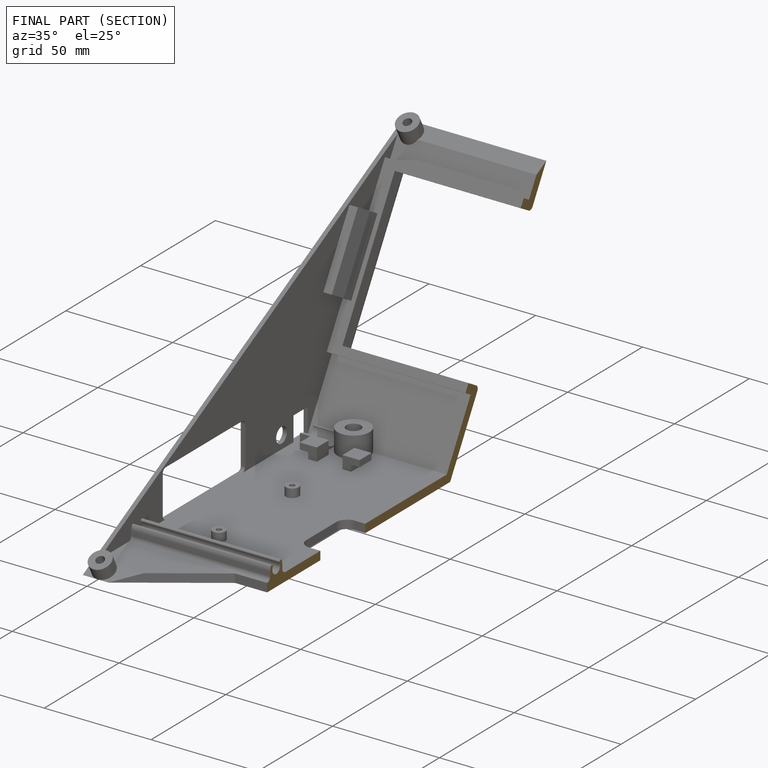
[diagram: finished part — half-section view (interior)]
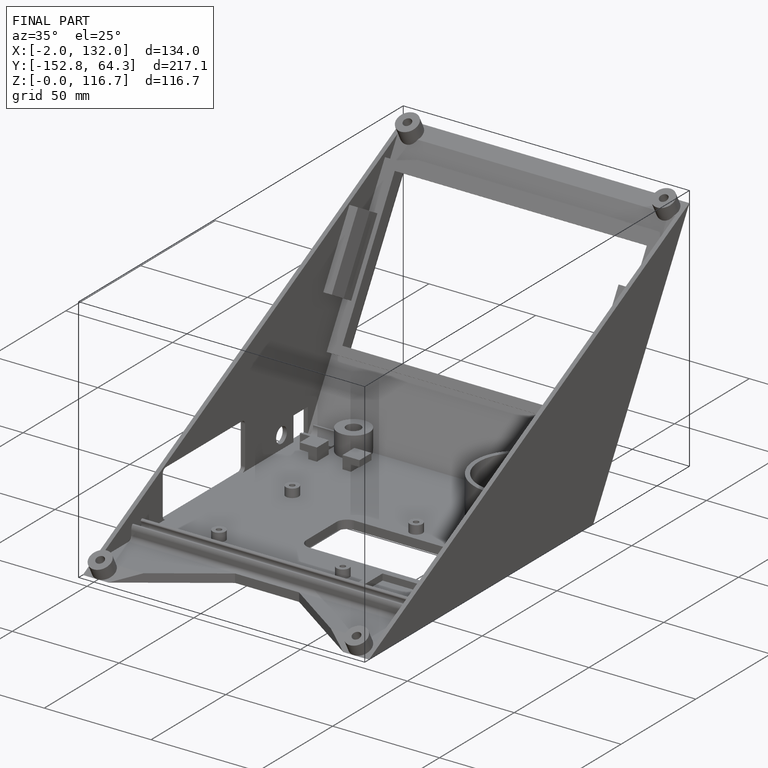
[diagram: finished part — iso view with bounding-box wireframe]
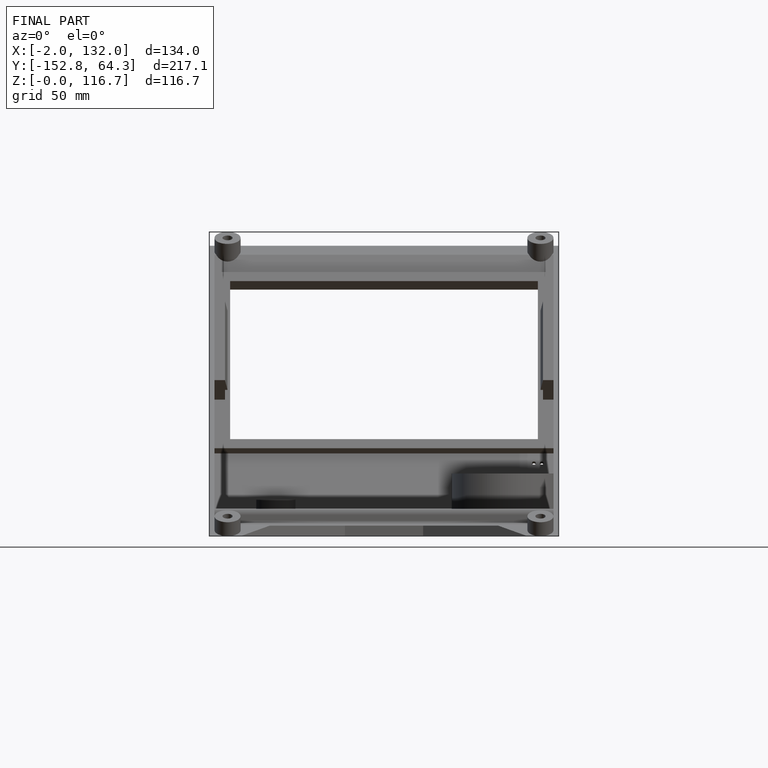
[diagram: finished part — front view with bounding-box wireframe]
